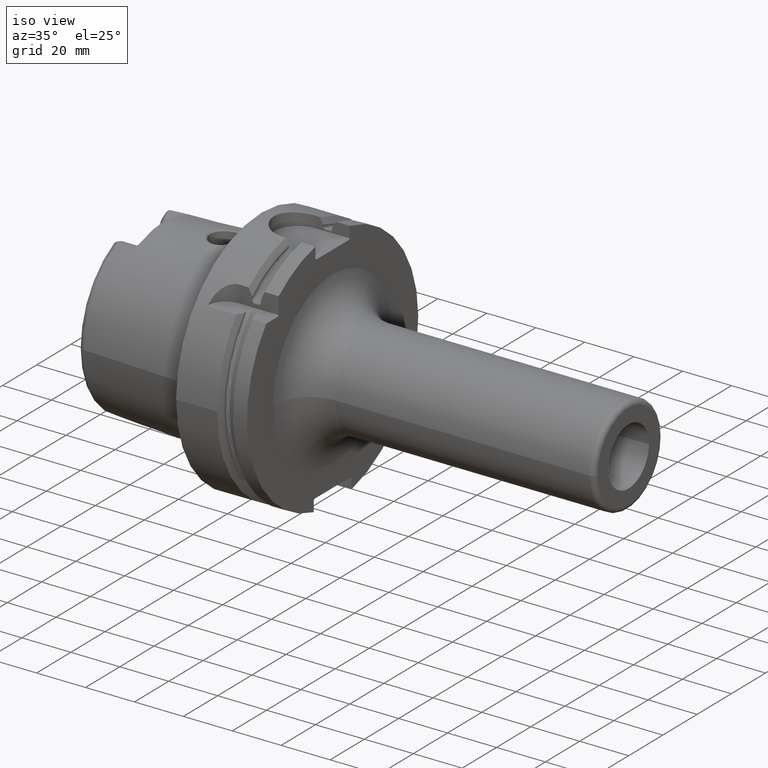
[diagram: clean part render]
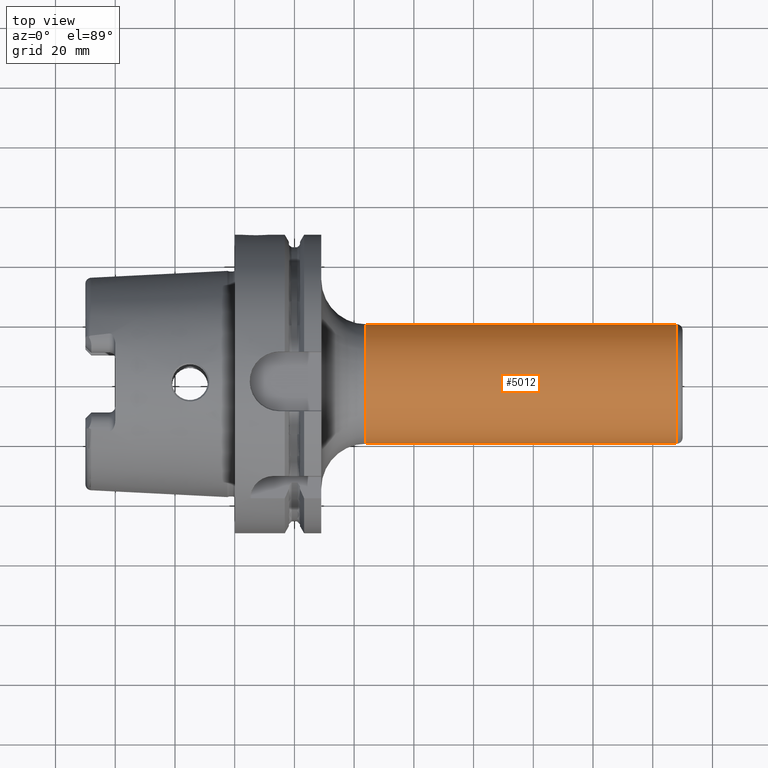
[diagram: tour spotlight — one face highlighted and labeled with its STEP entity id]
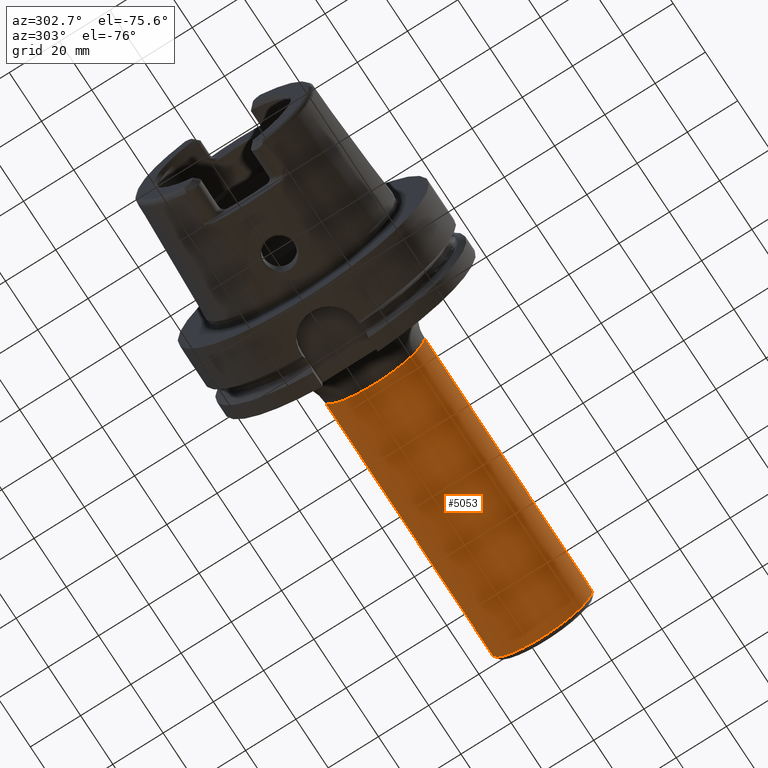
[diagram: tour spotlight — one face highlighted and labeled with its STEP entity id]
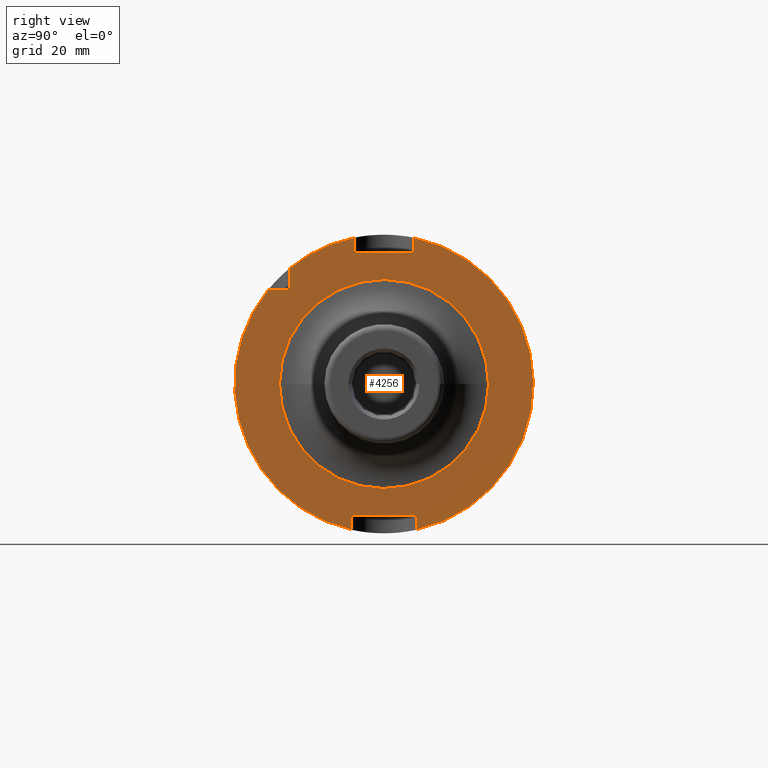
[diagram: tour spotlight — one face highlighted and labeled with its STEP entity id]
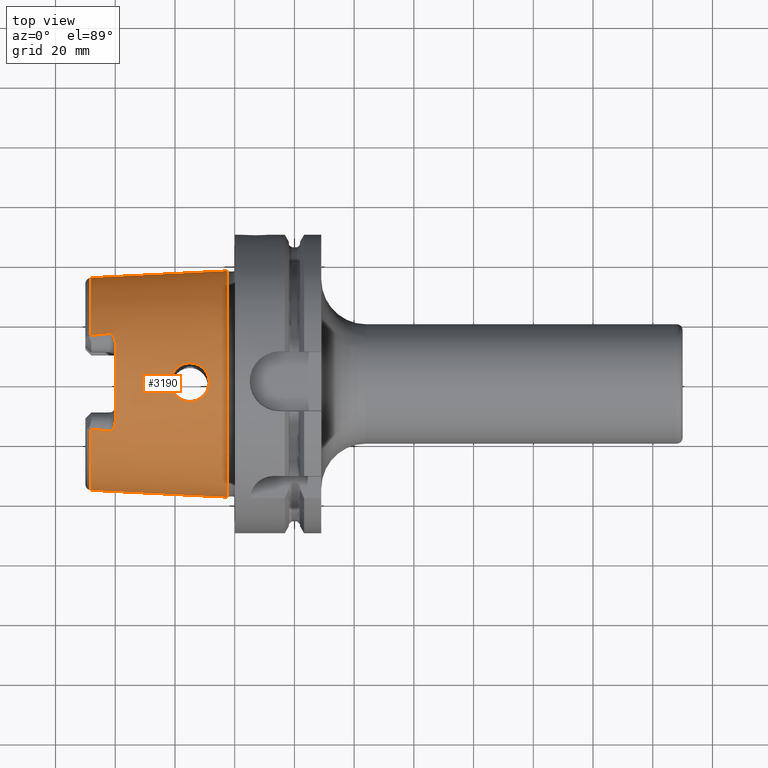
[diagram: tour spotlight — one face highlighted and labeled with its STEP entity id]
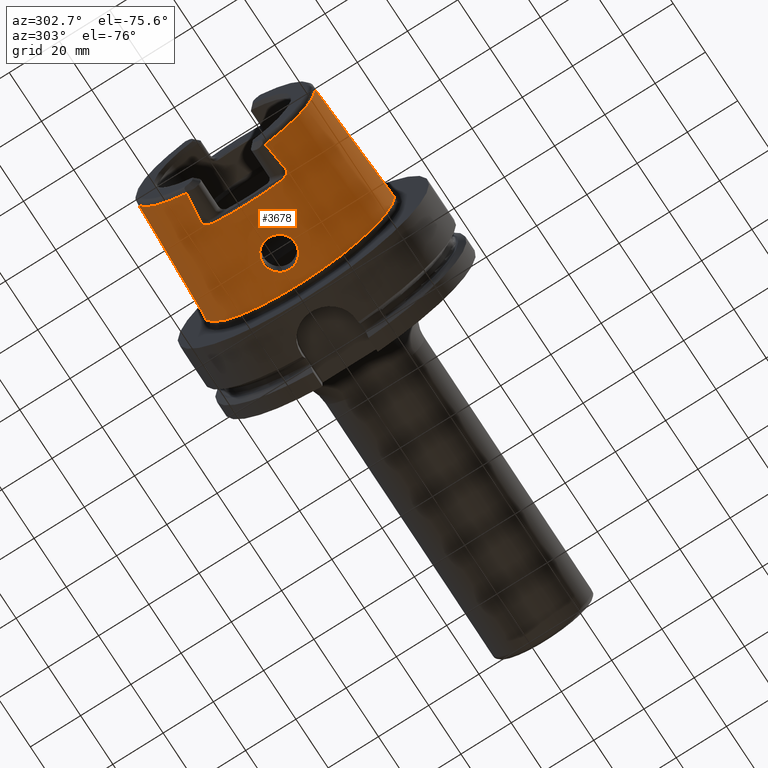
[diagram: tour spotlight — one face highlighted and labeled with its STEP entity id]
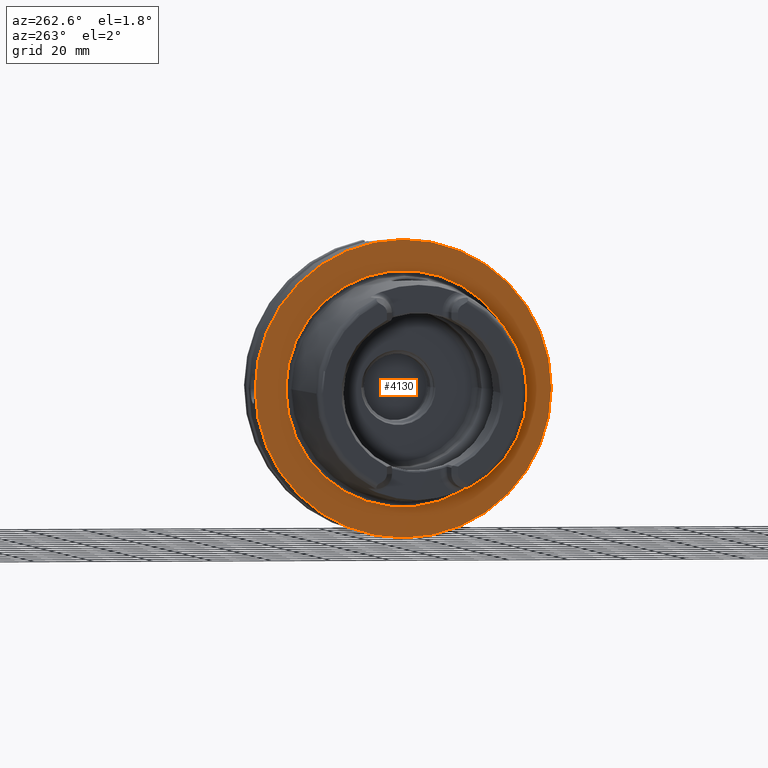
[diagram: tour spotlight — one face highlighted and labeled with its STEP entity id]
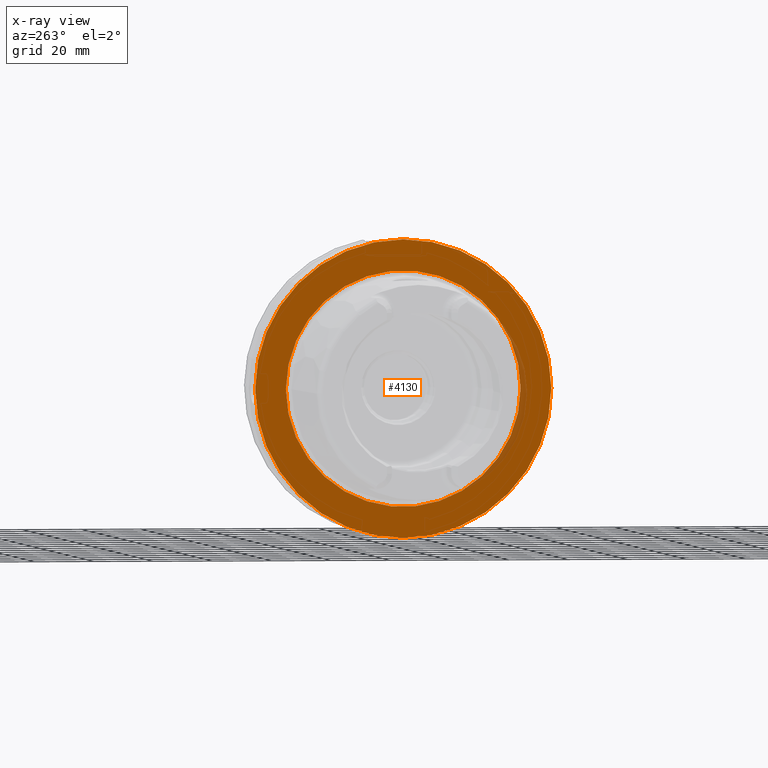
[diagram: x-ray of the same camera — body ghosted, this tour face saturated]
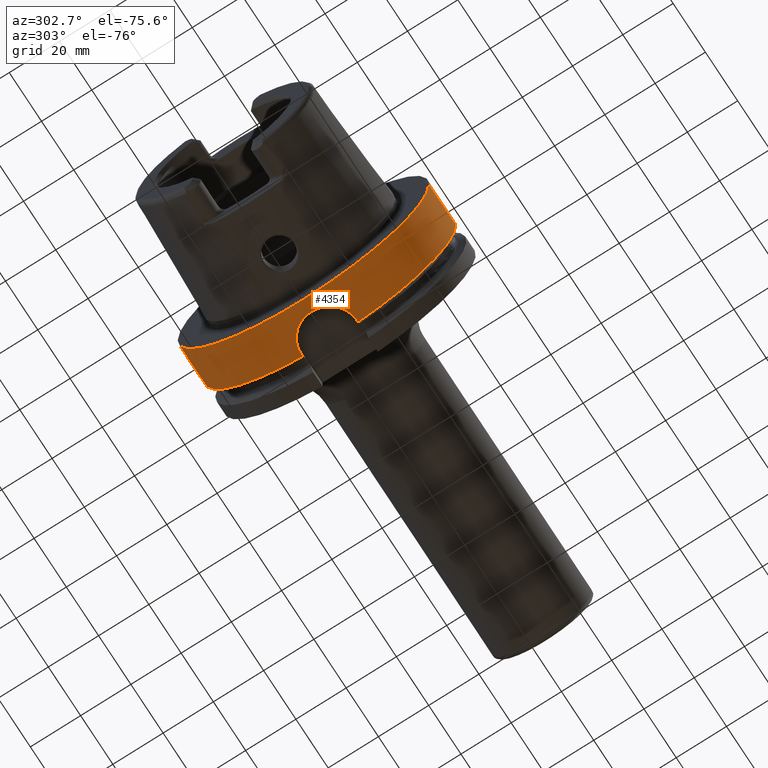
[diagram: tour spotlight — one face highlighted and labeled with its STEP entity id]
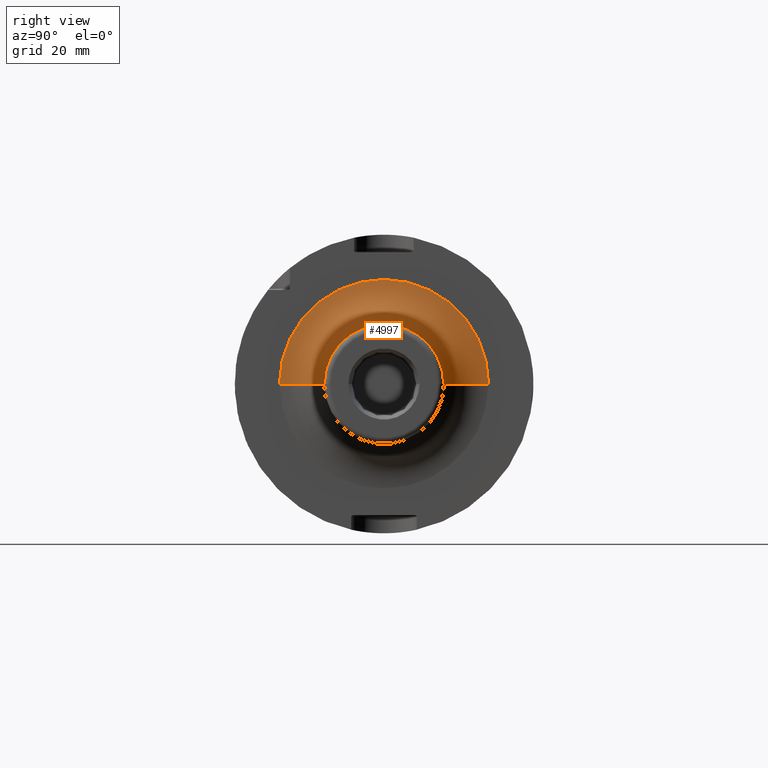
[diagram: tour spotlight — one face highlighted and labeled with its STEP entity id]
A machine part: a face-by-face anatomy tour. The part has 174 B-rep faces; the first image is the clean iso view, then the 8 largest visible faces are spotlighted one at a time (largest first), each with its STEP entity span.

Face 1 — top view, entity #5012. In plain terms, the highlighted cylindrical surface (partial cylindrical patch) has radius 20 mm, axis along (1, 0, 0).
Definition (entity closure, byte-faithful):
#1820=CARTESIAN_POINT('',(1.48E2,0.E0,0.E0));
#1821=DIRECTION('',(-1.E0,0.E0,0.E0));
#1822=DIRECTION('',(0.E0,-1.E0,0.E0));
#1823=AXIS2_PLACEMENT_3D('',#1820,#1821,#1822);
#1825=CARTESIAN_POINT('',(4.4E1,0.E0,0.E0));
#1826=DIRECTION('',(1.E0,0.E0,0.E0));
#1827=DIRECTION('',(0.E0,1.E0,0.E0));
#1828=AXIS2_PLACEMENT_3D('',#1825,#1826,#1827);
#1845=DIRECTION('',(-1.E0,0.E0,0.E0));
#1846=VECTOR('',#1845,1.04E2);
#1847=CARTESIAN_POINT('',(1.48E2,2.E1,-9.573251772015E-14));
#1848=LINE('',#1847,#1846);
#1854=DIRECTION('',(-1.E0,0.E0,0.E0));
#1855=VECTOR('',#1854,1.04E2);
#1856=CARTESIAN_POINT('',(1.48E2,-2.E1,9.511441768473E-14));
#1857=LINE('',#1856,#1855);
#3129=CARTESIAN_POINT('',(4.4E1,-2.E1,0.E0));
#3130=CARTESIAN_POINT('',(4.4E1,2.E1,0.E0));
#3131=VERTEX_POINT('',#3129);
#3132=VERTEX_POINT('',#3130);
#3133=CARTESIAN_POINT('',(1.48E2,2.E1,0.E0));
#3134=CARTESIAN_POINT('',(1.48E2,-2.E1,0.E0));
#3135=VERTEX_POINT('',#3133);
#3136=VERTEX_POINT('',#3134);
#4998=CARTESIAN_POINT('',(2.295E1,0.E0,0.E0));
#4999=DIRECTION('',(1.E0,0.E0,0.E0));
#5000=DIRECTION('',(0.E0,-1.E0,0.E0));
#5001=AXIS2_PLACEMENT_3D('',#4998,#4999,#5000);
#5002=CYLINDRICAL_SURFACE('',#5001,2.E1);
#5004=ORIENTED_EDGE('',*,*,#5003,.F.);
#5006=ORIENTED_EDGE('',*,*,#5005,.T.);
#5007=ORIENTED_EDGE('',*,*,#4992,.F.);
#5009=ORIENTED_EDGE('',*,*,#5008,.F.);
#5010=EDGE_LOOP('',(#5004,#5006,#5007,#5009));
#5011=FACE_OUTER_BOUND('',#5010,.F.);
#5012=ADVANCED_FACE('',(#5011),#5002,.T.);
#1824=CIRCLE('',#1823,2.E1);
#1829=CIRCLE('',#1828,2.E1);
#4992=EDGE_CURVE('',#3132,#3131,#1829,.T.);
#5003=EDGE_CURVE('',#3136,#3135,#1824,.T.);
#5005=EDGE_CURVE('',#3136,#3131,#1857,.T.);
#5008=EDGE_CURVE('',#3135,#3132,#1848,.T.);

Face 2 — auxiliary view, entity #5053. In plain terms, the highlighted cylindrical surface (partial cylindrical patch) has radius 20 mm, axis along (1, 0, 0).
Definition (entity closure, byte-faithful):
#1840=CARTESIAN_POINT('',(1.48E2,0.E0,0.E0));
#1841=DIRECTION('',(-1.E0,0.E0,0.E0));
#1842=DIRECTION('',(0.E0,1.E0,0.E0));
#1843=AXIS2_PLACEMENT_3D('',#1840,#1841,#1842);
#1845=DIRECTION('',(-1.E0,0.E0,0.E0));
#1846=VECTOR('',#1845,1.04E2);
#1847=CARTESIAN_POINT('',(1.48E2,2.E1,-9.573251772015E-14));
#1848=LINE('',#1847,#1846);
#1849=CARTESIAN_POINT('',(4.4E1,0.E0,0.E0));
#1850=DIRECTION('',(1.E0,0.E0,0.E0));
#1851=DIRECTION('',(0.E0,-1.E0,0.E0));
#1852=AXIS2_PLACEMENT_3D('',#1849,#1850,#1851);
#1854=DIRECTION('',(-1.E0,0.E0,0.E0));
#1855=VECTOR('',#1854,1.04E2);
#1856=CARTESIAN_POINT('',(1.48E2,-2.E1,9.511441768473E-14));
#1857=LINE('',#1856,#1855);
#3129=CARTESIAN_POINT('',(4.4E1,-2.E1,0.E0));
#3130=CARTESIAN_POINT('',(4.4E1,2.E1,0.E0));
#3131=VERTEX_POINT('',#3129);
#3132=VERTEX_POINT('',#3130);
#3133=CARTESIAN_POINT('',(1.48E2,2.E1,0.E0));
#3134=CARTESIAN_POINT('',(1.48E2,-2.E1,0.E0));
#3135=VERTEX_POINT('',#3133);
#3136=VERTEX_POINT('',#3134);
#5042=CARTESIAN_POINT('',(2.295E1,0.E0,0.E0));
#5043=DIRECTION('',(1.E0,0.E0,0.E0));
#5044=DIRECTION('',(0.E0,-1.E0,0.E0));
#5045=AXIS2_PLACEMENT_3D('',#5042,#5043,#5044);
#5046=CYLINDRICAL_SURFACE('',#5045,2.E1);
#5047=ORIENTED_EDGE('',*,*,#5033,.F.);
#5048=ORIENTED_EDGE('',*,*,#5008,.T.);
#5049=ORIENTED_EDGE('',*,*,#4978,.F.);
#5050=ORIENTED_EDGE('',*,*,#5005,.F.);
#5051=EDGE_LOOP('',(#5047,#5048,#5049,#5050));
#5052=FACE_OUTER_BOUND('',#5051,.F.);
#5053=ADVANCED_FACE('',(#5052),#5046,.T.);
#1844=CIRCLE('',#1843,2.E1);
#1853=CIRCLE('',#1852,2.E1);
#4978=EDGE_CURVE('',#3131,#3132,#1853,.T.);
#5005=EDGE_CURVE('',#3136,#3131,#1857,.T.);
#5008=EDGE_CURVE('',#3135,#3132,#1848,.T.);
#5033=EDGE_CURVE('',#3135,#3136,#1844,.T.);

Face 3 — right view, entity #4256. In plain terms, the highlighted planar face has unit normal (1, 0, 0).
Definition (entity closure, byte-faithful):
#1051=DIRECTION('',(0.E0,-7.071067811865E-1,-7.071067811865E-1));
#1052=VECTOR('',#1051,5.656854249492E-1);
#1053=CARTESIAN_POINT('',(2.9E1,-3.15E1,3.19E1));
#1054=LINE('',#1053,#1052);
#1059=DIRECTION('',(0.E0,1.E0,0.E0));
#1060=VECTOR('',#1059,6.929756630708E0);
#1061=CARTESIAN_POINT('',(2.9E1,-3.882975663071E1,3.15E1));
#1062=LINE('',#1061,#1060);
#1063=DIRECTION('',(0.E0,0.E0,-1.E0));
#1064=VECTOR('',#1063,6.929756630708E0);
#1065=CARTESIAN_POINT('',(2.9E1,-3.15E1,3.882975663071E1));
#1066=LINE('',#1065,#1064);
#1067=DIRECTION('',(0.E0,0.E0,-1.E0));
#1068=VECTOR('',#1067,4.589794855664E0);
#1069=CARTESIAN_POINT('',(2.9E1,-1.E1,4.898979485566E1));
#1070=LINE('',#1069,#1068);
#1071=DIRECTION('',(0.E0,1.E0,0.E0));
#1072=VECTOR('',#1071,1.92E1);
#1073=CARTESIAN_POINT('',(2.9E1,-9.6E0,4.4E1));
#1074=LINE('',#1073,#1072);
#1075=DIRECTION('',(0.E0,0.E0,-1.E0));
#1076=VECTOR('',#1075,4.589794855664E0);
#1077=CARTESIAN_POINT('',(2.9E1,1.E1,4.898979485566E1));
#1078=LINE('',#1077,#1076);
#1079=DIRECTION('',(0.E0,0.E0,1.E0));
#1080=VECTOR('',#1079,4.374993593029E0);
#1081=CARTESIAN_POINT('',(2.9E1,1.1E1,-4.877499359303E1));
#1082=LINE('',#1081,#1080);
#1083=DIRECTION('',(0.E0,-1.E0,0.E0));
#1084=VECTOR('',#1083,2.12E1);
#1085=CARTESIAN_POINT('',(2.9E1,1.06E1,-4.4E1));
#1086=LINE('',#1085,#1084);
#1087=DIRECTION('',(0.E0,0.E0,1.E0));
#1088=VECTOR('',#1087,4.374993593029E0);
#1089=CARTESIAN_POINT('',(2.9E1,-1.1E1,-4.877499359303E1));
#1090=LINE('',#1089,#1088);
#1091=CARTESIAN_POINT('',(2.9E1,0.E0,0.E0));
#1092=DIRECTION('',(1.E0,0.E0,0.E0));
#1093=DIRECTION('',(0.E0,-1.E0,0.E0));
#1094=AXIS2_PLACEMENT_3D('',#1091,#1092,#1093);
#1096=CARTESIAN_POINT('',(2.9E1,0.E0,0.E0));
#1097=DIRECTION('',(1.E0,0.E0,0.E0));
#1098=DIRECTION('',(0.E0,1.E0,0.E0));
#1099=AXIS2_PLACEMENT_3D('',#1096,#1097,#1098);
#1114=CARTESIAN_POINT('',(2.9E1,0.E0,0.E0));
#1115=DIRECTION('',(1.E0,0.E0,0.E0));
#1116=DIRECTION('',(0.E0,2.2E-1,-9.754998718606E-1));
#1117=AXIS2_PLACEMENT_3D('',#1114,#1115,#1116);
#1127=CARTESIAN_POINT('',(2.9E1,0.E0,0.E0));
#1128=DIRECTION('',(1.E0,0.E0,0.E0));
#1129=DIRECTION('',(0.E0,-7.765951326142E-1,6.3E-1));
#1130=AXIS2_PLACEMENT_3D('',#1127,#1128,#1129);
#1144=CARTESIAN_POINT('',(2.9E1,0.E0,0.E0));
#1145=DIRECTION('',(1.E0,0.E0,0.E0));
#1146=DIRECTION('',(0.E0,-2.E-1,9.797958971133E-1));
#1147=AXIS2_PLACEMENT_3D('',#1144,#1145,#1146);
#1251=DIRECTION('',(0.E0,7.071067811866E-1,-7.071067811865E-1));
#1252=VECTOR('',#1251,5.656854249492E-1);
#1253=CARTESIAN_POINT('',(2.9E1,1.06E1,-4.4E1));
#1254=LINE('',#1253,#1252);
#1259=DIRECTION('',(0.E0,7.071067811866E-1,7.071067811865E-1));
#1260=VECTOR('',#1259,5.656854249492E-1);
#1261=CARTESIAN_POINT('',(2.9E1,-1.1E1,-4.44E1));
#1262=LINE('',#1261,#1260);
#1748=DIRECTION('',(0.E0,-7.071067811866E-1,-7.071067811865E-1));
#1749=VECTOR('',#1748,5.656854249492E-1);
#1750=CARTESIAN_POINT('',(2.9E1,1.E1,4.44E1));
#1751=LINE('',#1750,#1749);
#1756=DIRECTION('',(0.E0,-7.071067811866E-1,7.071067811865E-1));
#1757=VECTOR('',#1756,5.656854249492E-1);
#1758=CARTESIAN_POINT('',(2.9E1,-9.6E0,4.4E1));
#1759=LINE('',#1758,#1757);
#2946=CARTESIAN_POINT('',(2.9E1,-9.6E0,4.4E1));
#2947=CARTESIAN_POINT('',(2.9E1,-1.E1,4.44E1));
#2948=VERTEX_POINT('',#2946);
#2949=VERTEX_POINT('',#2947);
#2950=CARTESIAN_POINT('',(2.9E1,1.E1,4.44E1));
#2951=CARTESIAN_POINT('',(2.9E1,9.6E0,4.4E1));
#2952=VERTEX_POINT('',#2950);
#2953=VERTEX_POINT('',#2951);
#2954=CARTESIAN_POINT('',(2.9E1,1.06E1,-4.4E1));
#2955=CARTESIAN_POINT('',(2.9E1,1.1E1,-4.44E1));
#2956=VERTEX_POINT('',#2954);
#2957=VERTEX_POINT('',#2955);
#2958=CARTESIAN_POINT('',(2.9E1,-1.1E1,-4.44E1));
#2959=CARTESIAN_POINT('',(2.9E1,-1.06E1,-4.4E1));
#2960=VERTEX_POINT('',#2958);
#2961=VERTEX_POINT('',#2959);
#2999=CARTESIAN_POINT('',(2.9E1,1.1E1,-4.877499359303E1));
#3001=VERTEX_POINT('',#2999);
#3007=CARTESIAN_POINT('',(2.9E1,-1.1E1,-4.877499359303E1));
#3009=VERTEX_POINT('',#3007);
#3042=CARTESIAN_POINT('',(2.9E1,-1.E1,4.898979485566E1));
#3043=VERTEX_POINT('',#3042);
#3044=CARTESIAN_POINT('',(2.9E1,1.E1,4.898979485566E1));
#3045=VERTEX_POINT('',#3044);
#3048=CARTESIAN_POINT('',(2.9E1,-3.15E1,3.19E1));
#3049=CARTESIAN_POINT('',(2.9E1,-3.19E1,3.15E1));
#3050=VERTEX_POINT('',#3048);
#3051=VERTEX_POINT('',#3049);
#3057=CARTESIAN_POINT('',(2.9E1,-3.882975663071E1,3.15E1));
#3059=VERTEX_POINT('',#3057);
#3061=CARTESIAN_POINT('',(2.9E1,-3.15E1,3.882975663071E1));
#3063=VERTEX_POINT('',#3061);
#3125=CARTESIAN_POINT('',(2.9E1,-3.5E1,0.E0));
#3126=CARTESIAN_POINT('',(2.9E1,3.5E1,0.E0));
#3127=VERTEX_POINT('',#3125);
#3128=VERTEX_POINT('',#3126);
#4212=CARTESIAN_POINT('',(2.9E1,0.E0,0.E0));
#4213=DIRECTION('',(1.E0,0.E0,0.E0));
#4214=DIRECTION('',(0.E0,-1.E0,0.E0));
#4215=AXIS2_PLACEMENT_3D('',#4212,#4213,#4214);
#4216=PLANE('',#4215);
#4218=ORIENTED_EDGE('',*,*,#4217,.T.);
#4219=ORIENTED_EDGE('',*,*,#4202,.F.);
#4221=ORIENTED_EDGE('',*,*,#4220,.F.);
#4223=ORIENTED_EDGE('',*,*,#4222,.F.);
#4225=ORIENTED_EDGE('',*,*,#4224,.T.);
#4227=ORIENTED_EDGE('',*,*,#4226,.F.);
#4229=ORIENTED_EDGE('',*,*,#4228,.T.);
#4231=ORIENTED_EDGE('',*,*,#4230,.F.);
#4233=ORIENTED_EDGE('',*,*,#4232,.F.);
#4235=ORIENTED_EDGE('',*,*,#4234,.F.);
#4237=ORIENTED_EDGE('',*,*,#4236,.T.);
#4239=ORIENTED_EDGE('',*,*,#4238,.F.);
#4241=ORIENTED_EDGE('',*,*,#4240,.T.);
#4243=ORIENTED_EDGE('',*,*,#4242,.F.);
#4245=ORIENTED_EDGE('',*,*,#4244,.F.);
#4247=ORIENTED_EDGE('',*,*,#4246,.F.);
#4248=EDGE_LOOP('',(#4218,#4219,#4221,#4223,#4225,#4227,#4229,#4231,#4233,#4235,
#4237,#4239,#4241,#4243,#4245,#4247));
#4249=FACE_OUTER_BOUND('',#4248,.F.);
#4251=ORIENTED_EDGE('',*,*,#4250,.T.);
#4253=ORIENTED_EDGE('',*,*,#4252,.T.);
#4254=EDGE_LOOP('',(#4251,#4253));
#4255=FACE_BOUND('',#4254,.F.);
#4256=ADVANCED_FACE('',(#4249,#4255),#4216,.T.);
#1095=CIRCLE('',#1094,3.5E1);
#1100=CIRCLE('',#1099,3.5E1);
#1118=CIRCLE('',#1117,5.E1);
#1131=CIRCLE('',#1130,5.E1);
#1148=CIRCLE('',#1147,5.E1);
#4202=EDGE_CURVE('',#3050,#3051,#1054,.T.);
#4217=EDGE_CURVE('',#3059,#3051,#1062,.T.);
#4220=EDGE_CURVE('',#3063,#3050,#1066,.T.);
#4222=EDGE_CURVE('',#3043,#3063,#1148,.T.);
#4224=EDGE_CURVE('',#3043,#2949,#1070,.T.);
#4226=EDGE_CURVE('',#2948,#2949,#1759,.T.);
#4228=EDGE_CURVE('',#2948,#2953,#1074,.T.);
#4230=EDGE_CURVE('',#2952,#2953,#1751,.T.);
#4232=EDGE_CURVE('',#3045,#2952,#1078,.T.);
#4234=EDGE_CURVE('',#3001,#3045,#1118,.T.);
#4236=EDGE_CURVE('',#3001,#2957,#1082,.T.);
#4238=EDGE_CURVE('',#2956,#2957,#1254,.T.);
#4240=EDGE_CURVE('',#2956,#2961,#1086,.T.);
#4242=EDGE_CURVE('',#2960,#2961,#1262,.T.);
#4244=EDGE_CURVE('',#3009,#2960,#1090,.T.);
#4246=EDGE_CURVE('',#3059,#3009,#1131,.T.);
#4250=EDGE_CURVE('',#3127,#3128,#1095,.T.);
#4252=EDGE_CURVE('',#3128,#3127,#1100,.T.);

Face 4 — top view, entity #3190. In plain terms, the highlighted conical surface has half-angle 2.868 deg.
Definition (entity closure, byte-faithful):
#2=CARTESIAN_POINT('',(-4.810007448473E1,-1.567653238626E1,3.196E1));
#3=CARTESIAN_POINT('',(-4.743649089753E1,-1.575202511592E1,3.196E1));
#4=CARTESIAN_POINT('',(-4.609985749196E1,-1.590320831227E1,3.196E1));
#5=CARTESIAN_POINT('',(-4.406668280177E1,-1.613055880919E1,3.196E1));
#6=CARTESIAN_POINT('',(-4.269206894520E1,-1.628254944441E1,3.196E1));
#7=CARTESIAN_POINT('',(-4.2E1,-1.635864758744E1,3.196E1));
#9=CARTESIAN_POINT('',(-4.E1,0.E0,0.E0));
#10=DIRECTION('',(1.E0,0.E0,0.E0));
#11=DIRECTION('',(0.E0,3.574556786365E-1,9.339301032789E-1));
#12=AXIS2_PLACEMENT_3D('',#9,#10,#11);
#14=CARTESIAN_POINT('',(-4.2E1,1.635864758744E1,3.196E1));
#15=CARTESIAN_POINT('',(-4.269204070145E1,1.628255255002E1,3.196E1));
#16=CARTESIAN_POINT('',(-4.406661691692E1,1.613056612298E1,3.196E1));
#17=CARTESIAN_POINT('',(-4.609979244919E1,1.590321563865E1,3.196E1));
#18=CARTESIAN_POINT('',(-4.743646302974E1,1.575202828631E1,3.196E1));
#19=CARTESIAN_POINT('',(-4.810007448473E1,1.567653238626E1,3.196E1));
#21=CARTESIAN_POINT('',(-2.5E0,0.E0,0.E0));
#22=DIRECTION('',(1.E0,0.E0,0.E0));
#23=DIRECTION('',(0.E0,1.E0,0.E0));
#24=AXIS2_PLACEMENT_3D('',#21,#22,#23);
#26=CARTESIAN_POINT('',(-2.149938207697E1,5.552926221647E-11,3.693037254664E1));
#27=CARTESIAN_POINT('',(-2.149947810722E1,2.456946967410E-1,3.693041400584E1));
#28=CARTESIAN_POINT('',(-2.146978943123E1,7.663421073483E-1,3.692663668754E1));
#29=CARTESIAN_POINT('',(-2.132902699242E1,1.552723327933E0,3.690919478302E1));
#30=CARTESIAN_POINT('',(-2.108091480959E1,2.342139536845E0,3.687974365394E1));
#31=CARTESIAN_POINT('',(-2.073440330363E1,3.094103832942E0,3.684140909161E1));
#32=CARTESIAN_POINT('',(-2.029456045373E1,3.796705318232E0,3.679744070735E1));
#33=CARTESIAN_POINT('',(-1.976895967621E1,4.437440706102E0,3.675180792921E1));
#34=CARTESIAN_POINT('',(-1.916766491360E1,5.004833501251E0,3.670884542936E1));
#35=CARTESIAN_POINT('',(-1.850089510031E1,5.490460623479E0,3.667275311991E1));
#36=CARTESIAN_POINT('',(-1.777939225152E1,5.887431777884E0,3.664739565010E1));
#37=CARTESIAN_POINT('',(-1.701424609593E1,6.190220322635E0,3.663607600264E1));
#38=CARTESIAN_POINT('',(-1.621758055837E1,6.394419176819E0,3.664131821143E1));
#39=CARTESIAN_POINT('',(-1.539955429301E1,6.497326105441E0,3.666474029556E1));
#40=CARTESIAN_POINT('',(-1.457114975166E1,6.496134002949E0,3.670710840669E1));
#41=CARTESIAN_POINT('',(-1.375127425398E1,6.390454994673E0,3.676745544266E1));
#42=CARTESIAN_POINT('',(-1.294983719070E1,6.181706493026E0,3.684404556607E1));
#43=CARTESIAN_POINT('',(-1.217938970715E1,5.872066509057E0,3.693403258601E1));
#44=CARTESIAN_POINT('',(-1.145343003562E1,5.466036101540E0,3.703341626103E1));
#45=CARTESIAN_POINT('',(-1.078465658031E1,4.970022940288E0,3.713742863004E1));
#46=CARTESIAN_POINT('',(-1.018517891880E1,4.392789013038E0,3.724075525816E1));
#47=CARTESIAN_POINT('',(-9.665388344352E0,3.744837411386E0,3.733802077293E1));
#48=CARTESIAN_POINT('',(-9.234092519568E0,3.038687491876E0,3.742410507514E1));
#49=CARTESIAN_POINT('',(-8.897351452215E0,2.287331206380E0,3.749468513875E1));
#50=CARTESIAN_POINT('',(-8.658527750933E0,1.501792221622E0,3.754652778726E1));
#51=CARTESIAN_POINT('',(-8.527369438248E0,7.337668322055E-1,3.757562813366E1));
#52=CARTESIAN_POINT('',(-8.500550849541E0,2.307484502453E-1,3.758164606668E1));
#53=CARTESIAN_POINT('',(-8.500618238409E0,-3.201212427053E-11,
3.758161093072E1));
#55=CARTESIAN_POINT('',(-8.500618238409E0,-3.201212427053E-11,
3.758161093072E1));
#56=CARTESIAN_POINT('',(-8.500529243712E0,-2.424312186462E-1,3.758165761842E1));
#57=CARTESIAN_POINT('',(-8.529377584627E0,-7.570713761110E-1,3.757517365272E1));
#58=CARTESIAN_POINT('',(-8.666699960505E0,-1.535920192154E0,3.754473037167E1));
#59=CARTESIAN_POINT('',(-8.909712492800E0,-2.320075305293E0,3.749204213674E1));
#60=CARTESIAN_POINT('',(-9.250504215006E0,-3.069650750447E0,3.742074072411E1));
#61=CARTESIAN_POINT('',(-9.685687617568E0,-3.773592271729E0,3.733408895737E1));
#62=CARTESIAN_POINT('',(-1.020908185061E1,-4.418816591912E0,3.723645352953E1));
#63=CARTESIAN_POINT('',(-1.081164311031E1,-4.992724782849E0,3.713300191729E1));
#64=CARTESIAN_POINT('',(-1.148289197008E1,-5.484961003997E0,3.702910971345E1));
#65=CARTESIAN_POINT('',(-1.221077052890E1,-5.886958600290E0,3.693005620282E1));
#66=CARTESIAN_POINT('',(-1.298272715167E1,-6.192450910075E0,3.684056019680E1));
#67=CARTESIAN_POINT('',(-1.378543745730E1,-6.397007236175E0,3.676457229973E1));
#68=CARTESIAN_POINT('',(-1.460657276070E1,-6.498354658048E0,3.670491060908E1));
#69=CARTESIAN_POINT('',(-1.543495839616E1,-6.495033034286E0,3.666334714016E1));
#70=CARTESIAN_POINT('',(-1.625254215847E1,-6.387680563827E0,3.664072182306E1));
#71=CARTESIAN_POINT('',(-1.704827269515E1,-6.179075952149E0,3.663623858926E1));
#72=CARTESIAN_POINT('',(-1.781166108930E1,-5.872129661425E0,3.664822647582E1));
#73=CARTESIAN_POINT('',(-1.853088883617E1,-5.471276112331E0,3.667411627299E1));
#74=CARTESIAN_POINT('',(-1.919496044775E1,-4.982042332370E0,3.671058230959E1));
#75=CARTESIAN_POINT('',(-1.979312959260E1,-4.411388967116E0,3.675374151488E1));
#76=CARTESIAN_POINT('',(-2.031520136204E1,-3.767815751250E0,3.679938652908E1));
#77=CARTESIAN_POINT('',(-2.075116173440E1,-3.062888856216E0,3.684318827995E1));
#78=CARTESIAN_POINT('',(-2.109352623852E1,-2.309166702590E0,3.688120055672E1));
#79=CARTESIAN_POINT('',(-2.133733752753E1,-1.518482485311E0,3.691020909579E1));
#80=CARTESIAN_POINT('',(-2.147183542910E1,-7.429704319279E-1,3.692690027450E1));
#81=CARTESIAN_POINT('',(-2.149945558988E1,-2.340112752743E-1,3.693040395664E1));
#82=CARTESIAN_POINT('',(-2.149938207697E1,5.552926221647E-11,3.693037254664E1));
#248=CARTESIAN_POINT('',(-4.044615405310E1,1.501E1,3.270080868281E1));
#249=CARTESIAN_POINT('',(-4.036716971646E1,1.480714421409E1,3.279827559643E1));
#250=CARTESIAN_POINT('',(-4.023151678165E1,1.441318283024E1,3.298193753654E1));
#251=CARTESIAN_POINT('',(-4.009402199227E1,1.386111148947E1,3.322490472400E1));
#252=CARTESIAN_POINT('',(-4.001617021866E1,1.334582492697E1,3.343918234932E1));
#253=CARTESIAN_POINT('',(-4.E1,1.302441475567E1,3.356551938374E1));
#254=CARTESIAN_POINT('',(-4.E1,1.286965552579E1,3.362475247340E1));
#312=CARTESIAN_POINT('',(-4.810007448473E1,0.E0,0.E0));
#313=DIRECTION('',(1.E0,0.E0,0.E0));
#314=DIRECTION('',(0.E0,1.E0,0.E0));
#315=AXIS2_PLACEMENT_3D('',#312,#313,#314);
#387=CARTESIAN_POINT('',(-4.810007448473E1,0.E0,0.E0));
#388=DIRECTION('',(1.E0,0.E0,0.E0));
#389=DIRECTION('',(0.E0,-4.403806547453E-1,8.978111599474E-1));
#390=AXIS2_PLACEMENT_3D('',#387,#388,#389);
#561=DIRECTION('',(-9.987473526255E-1,5.003724236654E-2,0.E0));
#562=VECTOR('',#561,4.565726694029E1);
#563=CARTESIAN_POINT('',(-2.5E0,-3.788225E1,0.E0));
#564=LINE('',#563,#562);
#570=DIRECTION('',(-9.987473526255E-1,-5.003724236654E-2,0.E0));
#571=VECTOR('',#570,4.565726694029E1);
#572=CARTESIAN_POINT('',(-2.5E0,3.788225E1,0.E0));
#573=LINE('',#572,#571);
#2577=CARTESIAN_POINT('',(-4.E1,-1.286965552579E1,3.362475247340E1));
#2578=CARTESIAN_POINT('',(-4.E1,-1.302441541648E1,3.356551913082E1));
#2579=CARTESIAN_POINT('',(-4.001617018251E1,-1.334582535629E1,
3.343918219674E1));
#2580=CARTESIAN_POINT('',(-4.009402242674E1,-1.386111200207E1,
3.322490442026E1));
#2581=CARTESIAN_POINT('',(-4.023151276023E1,-1.441316885171E1,
3.298194383001E1));
#2582=CARTESIAN_POINT('',(-4.036716744567E1,-1.480713838201E1,
3.279827839859E1));
#2583=CARTESIAN_POINT('',(-4.044615405310E1,-1.501E1,3.270080868281E1));
#2659=CARTESIAN_POINT('',(-4.044615405310E1,-1.501E1,3.270080868281E1));
#2660=CARTESIAN_POINT('',(-4.048970886745E1,-1.512186200292E1,
3.264706190833E1));
#2661=CARTESIAN_POINT('',(-4.058203784729E1,-1.533106618308E1,
3.254453864538E1));
#2662=CARTESIAN_POINT('',(-4.073432021554E1,-1.560191666355E1,
3.240695208273E1));
#2663=CARTESIAN_POINT('',(-4.089735125525E1,-1.582886077686E1,
3.228748605874E1));
#2664=CARTESIAN_POINT('',(-4.106769081077E1,-1.601331012900E1,
3.218678608847E1));
#2665=CARTESIAN_POINT('',(-4.125393253486E1,-1.616457753287E1,
3.210056649743E1));
#2666=CARTESIAN_POINT('',(-4.144626840802E1,-1.627335249792E1,
3.203468630644E1));
#2667=CARTESIAN_POINT('',(-4.163743535609E1,-1.633966611997E1,
3.199012198327E1));
#2668=CARTESIAN_POINT('',(-4.181861360320E1,-1.636784997544E1,
3.196549826812E1));
#2669=CARTESIAN_POINT('',(-4.194004005827E1,-1.636524063030E1,3.196E1));
#2670=CARTESIAN_POINT('',(-4.2E1,-1.635864758744E1,3.196E1));
#2680=CARTESIAN_POINT('',(-4.2E1,1.635864758744E1,3.196E1));
#2681=CARTESIAN_POINT('',(-4.193871342572E1,1.636538650345E1,3.196E1));
#2682=CARTESIAN_POINT('',(-4.181450390691E1,1.636814761969E1,3.196557762379E1));
#2683=CARTESIAN_POINT('',(-4.162243507007E1,1.633619695788E1,3.199274042675E1));
#2684=CARTESIAN_POINT('',(-4.143278453244E1,1.626680995517E1,3.203876886227E1));
#2685=CARTESIAN_POINT('',(-4.124494122381E1,1.615802805146E1,3.210436522250E1));
#2686=CARTESIAN_POINT('',(-4.106242535143E1,1.600818739776E1,3.218962850171E1));
#2687=CARTESIAN_POINT('',(-4.089248890939E1,1.582281513116E1,3.229072139863E1));
#2688=CARTESIAN_POINT('',(-4.073124146543E1,1.559684012110E1,3.240956146553E1));
#2689=CARTESIAN_POINT('',(-4.058058611384E1,1.532793070389E1,3.254608698749E1));
#2690=CARTESIAN_POINT('',(-4.048925691866E1,1.512070126105E1,3.264761961452E1));
#2691=CARTESIAN_POINT('',(-4.044615405310E1,1.501E1,3.270080868281E1));
#2713=CARTESIAN_POINT('',(-2.5E0,3.788225E1,0.E0));
#2714=CARTESIAN_POINT('',(-2.5E0,-3.788225E1,0.E0));
#2715=VERTEX_POINT('',#2713);
#2716=VERTEX_POINT('',#2714);
#2717=CARTESIAN_POINT('',(-4.810007448473E1,3.559768626831E1,0.E0));
#2718=VERTEX_POINT('',#2717);
#2719=CARTESIAN_POINT('',(-4.810007448473E1,-3.559768626831E1,0.E0));
#2720=VERTEX_POINT('',#2719);
#2757=CARTESIAN_POINT('',(-4.810007448473E1,1.567653238626E1,3.196E1));
#2758=VERTEX_POINT('',#2757);
#2759=CARTESIAN_POINT('',(-4.810007448473E1,-1.567653238626E1,3.196E1));
#2760=VERTEX_POINT('',#2759);
#2769=CARTESIAN_POINT('',(-4.E1,1.286965552579E1,3.362475247340E1));
#2770=VERTEX_POINT('',#2769);
#2773=CARTESIAN_POINT('',(-4.2E1,1.635864758744E1,3.196E1));
#2774=VERTEX_POINT('',#2773);
#2775=CARTESIAN_POINT('',(-4.E1,-1.286965552579E1,3.362475247340E1));
#2776=VERTEX_POINT('',#2775);
#2779=CARTESIAN_POINT('',(-4.2E1,-1.635864758744E1,3.196E1));
#2780=VERTEX_POINT('',#2779);
#2781=VERTEX_POINT('',#2691);
#2782=VERTEX_POINT('',#2659);
#2922=VERTEX_POINT('',#26);
#2923=VERTEX_POINT('',#53);
#3153=CARTESIAN_POINT('',(-2.530003724237E1,0.E0,0.E0));
#3154=DIRECTION('',(1.E0,0.E0,0.E0));
#3155=DIRECTION('',(0.E0,-1.E0,0.E0));
#3156=AXIS2_PLACEMENT_3D('',#3153,#3154,#3155);
#3157=CONICAL_SURFACE('',#3156,3.673996813416E1,2.868120487315E0);
#3159=ORIENTED_EDGE('',*,*,#3158,.T.);
#3161=ORIENTED_EDGE('',*,*,#3160,.F.);
#3163=ORIENTED_EDGE('',*,*,#3162,.F.);
#3165=ORIENTED_EDGE('',*,*,#3164,.F.);
#3167=ORIENTED_EDGE('',*,*,#3166,.F.);
#3169=ORIENTED_EDGE('',*,*,#3168,.F.);
#3171=ORIENTED_EDGE('',*,*,#3170,.T.);
#3173=ORIENTED_EDGE('',*,*,#3172,.F.);
#3175=ORIENTED_EDGE('',*,*,#3174,.F.);
#3177=ORIENTED_EDGE('',*,*,#3176,.T.);
#3179=ORIENTED_EDGE('',*,*,#3178,.T.);
#3181=ORIENTED_EDGE('',*,*,#3180,.F.);
#3182=EDGE_LOOP('',(#3159,#3161,#3163,#3165,#3167,#3169,#3171,#3173,#3175,#3177,
#3179,#3181));
#3183=FACE_OUTER_BOUND('',#3182,.F.);
#3185=ORIENTED_EDGE('',*,*,#3184,.F.);
#3187=ORIENTED_EDGE('',*,*,#3186,.F.);
#3188=EDGE_LOOP('',(#3185,#3187));
#3189=FACE_BOUND('',#3188,.F.);
#3190=ADVANCED_FACE('',(#3183,#3189),#3157,.T.);
#8=B_SPLINE_CURVE_WITH_KNOTS('',3,(#2,#3,#4,#5,#6,#7),.UNSPECIFIED.,.F.,.F.,(4,
1,1,4),(0.E0,3.333333333333E-1,6.666666666667E-1,1.E0),.UNSPECIFIED.);
#13=CIRCLE('',#12,3.60035E1);
#20=B_SPLINE_CURVE_WITH_KNOTS('',3,(#14,#15,#16,#17,#18,#19),.UNSPECIFIED.,.F.,
.F.,(4,1,1,4),(0.E0,3.333333333333E-1,6.666666666667E-1,1.E0),.UNSPECIFIED.);
#25=CIRCLE('',#24,3.788225E1);
#54=B_SPLINE_CURVE_WITH_KNOTS('',3,(#26,#27,#28,#29,#30,#31,#32,#33,#34,#35,#36,
#37,#38,#39,#40,#41,#42,#43,#44,#45,#46,#47,#48,#49,#50,#51,#52,#53),
.UNSPECIFIED.,.F.,.F.,(4,1,1,1,1,1,1,1,1,1,1,1,1,1,1,1,1,1,1,1,1,1,1,1,1,4),(
0.E0,3.626792904996E-2,7.667308714875E-2,1.170782452475E-1,1.574834033463E-1,
1.978885614451E-1,2.382937195439E-1,2.786988776427E-1,3.191040357415E-1,
3.595091938403E-1,3.999143519391E-1,4.403195100379E-1,4.807246681367E-1,
5.211298262355E-1,5.615349843343E-1,6.019401424331E-1,6.423453005319E-1,
6.827504586307E-1,7.231556167295E-1,7.635607748283E-1,8.039659329271E-1,
8.443710910259E-1,8.847762491247E-1,9.251814072235E-1,9.655865653223E-1,1.E0),
.UNSPECIFIED.);
#83=B_SPLINE_CURVE_WITH_KNOTS('',3,(#55,#56,#57,#58,#59,#60,#61,#62,#63,#64,#65,
#66,#67,#68,#69,#70,#71,#72,#73,#74,#75,#76,#77,#78,#79,#80,#81,#82),
.UNSPECIFIED.,.F.,.F.,(4,1,1,1,1,1,1,1,1,1,1,1,1,1,1,1,1,1,1,1,1,1,1,1,1,4),(
0.E0,3.618329534544E-2,7.658712835106E-2,1.169909613567E-1,1.573947943623E-1,
1.977986273679E-1,2.382024603735E-1,2.786062933791E-1,3.190101263848E-1,
3.594139593904E-1,3.998177923960E-1,4.402216254016E-1,4.806254584072E-1,
5.210292914128E-1,5.614331244184E-1,6.018369574241E-1,6.422407904297E-1,
6.826446234353E-1,7.230484564409E-1,7.634522894465E-1,8.038561224521E-1,
8.442599554578E-1,8.846637884634E-1,9.250676214690E-1,9.654714544746E-1,1.E0),
.UNSPECIFIED.);
#255=B_SPLINE_CURVE_WITH_KNOTS('',3,(#248,#249,#250,#251,#252,#253,#254),
.UNSPECIFIED.,.F.,.F.,(4,1,1,1,4),(0.E0,2.5E-1,5.E-1,7.5E-1,1.E0),
.UNSPECIFIED.);
#316=CIRCLE('',#315,3.559768626831E1);
#391=CIRCLE('',#390,3.559768626831E1);
#2584=B_SPLINE_CURVE_WITH_KNOTS('',3,(#2577,#2578,#2579,#2580,#2581,#2582,
#2583),.UNSPECIFIED.,.F.,.F.,(4,1,1,1,4),(0.E0,2.5E-1,5.E-1,7.5E-1,1.E0),
.UNSPECIFIED.);
#2671=B_SPLINE_CURVE_WITH_KNOTS('',3,(#2659,#2660,#2661,#2662,#2663,#2664,#2665,
#2666,#2667,#2668,#2669,#2670),.UNSPECIFIED.,.F.,.F.,(4,1,1,1,1,1,1,1,1,4),
(0.E0,1.111111111111E-1,2.222222222222E-1,3.333333333333E-1,4.444444444444E-1,
5.555555555556E-1,6.666666666667E-1,7.777777777778E-1,8.888888888889E-1,1.E0),
.UNSPECIFIED.);
#2692=B_SPLINE_CURVE_WITH_KNOTS('',3,(#2680,#2681,#2682,#2683,#2684,#2685,#2686,
#2687,#2688,#2689,#2690,#2691),.UNSPECIFIED.,.F.,.F.,(4,1,1,1,1,1,1,1,1,4),
(0.E0,1.111111111111E-1,2.222222222222E-1,3.333333333333E-1,4.444444444444E-1,
5.555555555556E-1,6.666666666667E-1,7.777777777778E-1,8.888888888889E-1,1.E0),
.UNSPECIFIED.);
#3158=EDGE_CURVE('',#2760,#2780,#8,.T.);
#3160=EDGE_CURVE('',#2782,#2780,#2671,.T.);
#3162=EDGE_CURVE('',#2776,#2782,#2584,.T.);
#3164=EDGE_CURVE('',#2770,#2776,#13,.T.);
#3166=EDGE_CURVE('',#2781,#2770,#255,.T.);
#3168=EDGE_CURVE('',#2774,#2781,#2692,.T.);
#3170=EDGE_CURVE('',#2774,#2758,#20,.T.);
#3172=EDGE_CURVE('',#2718,#2758,#316,.T.);
#3174=EDGE_CURVE('',#2715,#2718,#573,.T.);
#3176=EDGE_CURVE('',#2715,#2716,#25,.T.);
#3178=EDGE_CURVE('',#2716,#2720,#564,.T.);
#3180=EDGE_CURVE('',#2760,#2720,#391,.T.);
#3184=EDGE_CURVE('',#2922,#2923,#54,.T.);
#3186=EDGE_CURVE('',#2923,#2922,#83,.T.);

Face 5 — auxiliary view, entity #3678. In plain terms, the highlighted conical surface has half-angle 2.868 deg.
Definition (entity closure, byte-faithful):
#307=CARTESIAN_POINT('',(-4.810007448473E1,0.E0,0.E0));
#308=DIRECTION('',(-1.E0,0.E0,0.E0));
#309=DIRECTION('',(0.E0,1.E0,0.E0));
#310=AXIS2_PLACEMENT_3D('',#307,#308,#309);
#392=CARTESIAN_POINT('',(-4.810007448473E1,0.E0,0.E0));
#393=DIRECTION('',(-1.E0,0.E0,0.E0));
#394=DIRECTION('',(0.E0,-4.403806547453E-1,-8.978111599474E-1));
#395=AXIS2_PLACEMENT_3D('',#392,#393,#394);
#542=CARTESIAN_POINT('',(-4.810007448473E1,1.567653238626E1,-3.196E1));
#543=CARTESIAN_POINT('',(-4.691253354608E1,1.581163323682E1,-3.196E1));
#544=CARTESIAN_POINT('',(-4.450693295241E1,1.608249060017E1,-3.196E1));
#545=CARTESIAN_POINT('',(-4.080822205394E1,1.649061651786E1,-3.196E1));
#546=CARTESIAN_POINT('',(-3.827971844003E1,1.676420418060E1,-3.196E1));
#547=CARTESIAN_POINT('',(-3.7E1,1.690135066910E1,-3.196E1));
#549=CARTESIAN_POINT('',(-3.5E1,0.E0,0.E0));
#550=DIRECTION('',(1.E0,0.E0,0.E0));
#551=DIRECTION('',(0.E0,-3.659355944317E-1,-9.306401779033E-1));
#552=AXIS2_PLACEMENT_3D('',#549,#550,#551);
#554=CARTESIAN_POINT('',(-3.7E1,-1.690135066910E1,-3.196E1));
#555=CARTESIAN_POINT('',(-3.827957528302E1,-1.676421952263E1,-3.196E1));
#556=CARTESIAN_POINT('',(-4.080788819039E1,-1.649065289085E1,-3.196E1));
#557=CARTESIAN_POINT('',(-4.450660828452E1,-1.608252688744E1,-3.196E1));
#558=CARTESIAN_POINT('',(-4.691239447940E1,-1.581164905777E1,-3.196E1));
#559=CARTESIAN_POINT('',(-4.810007448473E1,-1.567653238626E1,-3.196E1));
#561=DIRECTION('',(-9.987473526255E-1,5.003724236654E-2,0.E0));
#562=VECTOR('',#561,4.565726694029E1);
#563=CARTESIAN_POINT('',(-2.5E0,-3.788225E1,0.E0));
#564=LINE('',#563,#562);
#565=CARTESIAN_POINT('',(-2.5E0,0.E0,0.E0));
#566=DIRECTION('',(1.E0,0.E0,0.E0));
#567=DIRECTION('',(0.E0,-1.E0,0.E0));
#568=AXIS2_PLACEMENT_3D('',#565,#566,#567);
#570=DIRECTION('',(-9.987473526255E-1,-5.003724236654E-2,0.E0));
#571=VECTOR('',#570,4.565726694029E1);
#572=CARTESIAN_POINT('',(-2.5E0,3.788225E1,0.E0));
#573=LINE('',#572,#571);
#574=CARTESIAN_POINT('',(-8.500618228215E0,-4.475741567310E-11,
-3.758161092103E1));
#575=CARTESIAN_POINT('',(-8.500550626629E0,2.307123186996E-1,
-3.758164609326E1));
#576=CARTESIAN_POINT('',(-8.527361627144E0,7.336655055656E-1,
-3.757562989718E1));
#577=CARTESIAN_POINT('',(-8.658487901890E0,1.501607868725E0,-3.754653658895E1));
#578=CARTESIAN_POINT('',(-8.897257248323E0,2.287068896E0,-3.749470537780E1));
#579=CARTESIAN_POINT('',(-9.233930830616E0,3.038376631295E0,-3.742413833235E1));
#580=CARTESIAN_POINT('',(-9.665180423226E0,3.744542284435E0,-3.733806106411E1));
#581=CARTESIAN_POINT('',(-1.018494007596E1,4.392525906197E0,-3.724079839048E1));
#582=CARTESIAN_POINT('',(-1.078433252086E1,4.969742317677E0,-3.713748237766E1));
#583=CARTESIAN_POINT('',(-1.145295368828E1,5.465719413789E0,-3.703348699097E1));
#584=CARTESIAN_POINT('',(-1.217872434304E1,5.871741506149E0,-3.693411809702E1));
#585=CARTESIAN_POINT('',(-1.294907725396E1,6.181458789403E0,-3.684412609384E1));
#586=CARTESIAN_POINT('',(-1.375077304364E1,6.390383355882E0,-3.676749362246E1));
#587=CARTESIAN_POINT('',(-1.457124723519E1,6.496150992971E0,-3.670710043979E1));
#588=CARTESIAN_POINT('',(-1.539963323060E1,6.497327684605E0,-3.666473599908E1));
#589=CARTESIAN_POINT('',(-1.621811808436E1,6.394337052140E0,-3.664130538745E1));
#590=CARTESIAN_POINT('',(-1.701498565109E1,6.189982543680E0,-3.663607891146E1));
#591=CARTESIAN_POINT('',(-1.778004900083E1,5.887116868581E0,-3.664741303044E1));
#592=CARTESIAN_POINT('',(-1.850137732128E1,5.490146143225E0,-3.667277568766E1));
#593=CARTESIAN_POINT('',(-1.916799834207E1,5.004550368212E0,-3.670886700839E1));
#594=CARTESIAN_POINT('',(-1.976920462201E1,4.437176205297E0,-3.675182754134E1));
#595=CARTESIAN_POINT('',(-2.029477253260E1,3.796411168194E0,-3.679746060413E1));
#596=CARTESIAN_POINT('',(-2.073457092496E1,3.093790391877E0,-3.684142692236E1));
#597=CARTESIAN_POINT('',(-2.108101531841E1,2.341868855664E0,-3.687975533364E1));
#598=CARTESIAN_POINT('',(-2.132907064090E1,1.552529546171E0,-3.690920014808E1));
#599=CARTESIAN_POINT('',(-2.146979802624E1,7.662360037897E-1,
-3.692663777819E1));
#600=CARTESIAN_POINT('',(-2.149947827869E1,2.456572466609E-1,
-3.693041402385E1));
#601=CARTESIAN_POINT('',(-2.149938206728E1,4.252313622681E-11,
-3.693037255683E1));
#603=CARTESIAN_POINT('',(-2.149938206728E1,4.252313622681E-11,
-3.693037255683E1));
#604=CARTESIAN_POINT('',(-2.149945538697E1,-2.340479521171E-1,
-3.693040395485E1));
#605=CARTESIAN_POINT('',(-2.147182734210E1,-7.430736824871E-1,
-3.692689923808E1));
#606=CARTESIAN_POINT('',(-2.133729628437E1,-1.518670363132E0,
-3.691020402111E1));
#607=CARTESIAN_POINT('',(-2.109342961129E1,-2.309431654899E0,
-3.688118929283E1));
#608=CARTESIAN_POINT('',(-2.075099845802E1,-3.063198291705E0,
-3.684317083610E1));
#609=CARTESIAN_POINT('',(-2.031499413642E1,-3.768106404610E0,
-3.679936697460E1));
#610=CARTESIAN_POINT('',(-1.979289029767E1,-4.411650229581E0,
-3.675372219731E1));
#611=CARTESIAN_POINT('',(-1.919463266022E1,-4.982323872691E0,
-3.671056084722E1));
#612=CARTESIAN_POINT('',(-1.853041114464E1,-5.471591578572E0,
-3.667409350441E1));
#613=CARTESIAN_POINT('',(-1.781100487862E1,-5.872448697570E0,
-3.664820853921E1));
#614=CARTESIAN_POINT('',(-1.704753604412E1,-6.179316936003E0,
-3.663623504527E1));
#615=CARTESIAN_POINT('',(-1.625202603452E1,-6.387759294270E0,
-3.664073415043E1));
#616=CARTESIAN_POINT('',(-1.543496245560E1,-6.495024783349E0,
-3.666334839609E1));
#617=CARTESIAN_POINT('',(-1.460654750338E1,-6.498344270788E0,
-3.670491373185E1));
#618=CARTESIAN_POINT('',(-1.378596486485E1,-6.397082641248E0,
-3.676453213359E1));
#619=CARTESIAN_POINT('',(-1.298349373108E1,-6.192696568201E0,
-3.684047961027E1));
#620=CARTESIAN_POINT('',(-1.221144146647E1,-5.887281631963E0,
-3.692997057387E1));
#621=CARTESIAN_POINT('',(-1.148337668307E1,-5.485279169694E0,
-3.702903815359E1));
#622=CARTESIAN_POINT('',(-1.081197580096E1,-4.993009521795E0,
-3.713294698881E1));
#623=CARTESIAN_POINT('',(-1.020932849949E1,-4.419085304323E0,
-3.723640914420E1));
#624=CARTESIAN_POINT('',(-9.685901962872E0,-3.773893108114E0,
-3.733404753344E1));
#625=CARTESIAN_POINT('',(-9.250671307496E0,-3.069967665821E0,
-3.742070642908E1));
#626=CARTESIAN_POINT('',(-8.909811119218E0,-2.320344961222E0,
-3.749202098184E1));
#627=CARTESIAN_POINT('',(-8.666742386503E0,-1.536111417479E0,
-3.754472100539E1));
#628=CARTESIAN_POINT('',(-8.529385927200E0,-7.571760095601E-1,
-3.757517178087E1));
#629=CARTESIAN_POINT('',(-8.500529445925E0,-2.424682905367E-1,
-3.758165757513E1));
#630=CARTESIAN_POINT('',(-8.500618228215E0,-4.475741567310E-11,
-3.758161092103E1));
#644=CARTESIAN_POINT('',(-3.525270277560E1,1.501E1,-3.298688520224E1));
#645=CARTESIAN_POINT('',(-3.528534211849E1,1.513484846724E1,-3.292827892747E1));
#646=CARTESIAN_POINT('',(-3.535659114497E1,1.537361797185E1,-3.281400095423E1));
#647=CARTESIAN_POINT('',(-3.548419296966E1,1.570424630972E1,-3.264982183345E1));
#648=CARTESIAN_POINT('',(-3.562487069608E1,1.598931575733E1,-3.250314611781E1));
#649=CARTESIAN_POINT('',(-3.577616803803E1,1.623191524099E1,-3.237407229234E1));
#650=CARTESIAN_POINT('',(-3.593586343865E1,1.643375355599E1,-3.226300002168E1));
#651=CARTESIAN_POINT('',(-3.610247622728E1,1.659835163566E1,-3.216916661381E1));
#652=CARTESIAN_POINT('',(-3.628387335068E1,1.673284687743E1,-3.208910564772E1));
#653=CARTESIAN_POINT('',(-3.646929278561E1,1.682849462631E1,-3.202850145999E1));
#654=CARTESIAN_POINT('',(-3.665268151350E1,1.688632035229E1,-3.198763365132E1));
#655=CARTESIAN_POINT('',(-3.682605028784E1,1.691041315903E1,-3.196506559814E1));
#656=CARTESIAN_POINT('',(-3.694247506704E1,1.690751557406E1,-3.196E1));
#657=CARTESIAN_POINT('',(-3.7E1,1.690135066910E1,-3.196E1));
#659=CARTESIAN_POINT('',(-3.5E1,1.326662904053E1,-3.373942900971E1));
#660=CARTESIAN_POINT('',(-3.5E1,1.343868538316E1,-3.367177499958E1));
#661=CARTESIAN_POINT('',(-3.501772820886E1,1.379762114623E1,-3.352663792870E1));
#662=CARTESIAN_POINT('',(-3.510106181354E1,1.437663105579E1,-3.327825241176E1));
#663=CARTESIAN_POINT('',(-3.519623214612E1,1.479399468517E1,-3.308828225672E1));
#664=CARTESIAN_POINT('',(-3.525270277560E1,1.501E1,-3.298688520224E1));
#794=CARTESIAN_POINT('',(-3.525270277560E1,-1.501E1,-3.298688520224E1));
#795=CARTESIAN_POINT('',(-3.519623503110E1,-1.479400572048E1,
-3.308827707653E1));
#796=CARTESIAN_POINT('',(-3.510106651291E1,-1.437665722375E1,
-3.327824091962E1));
#797=CARTESIAN_POINT('',(-3.501772741615E1,-1.379761960865E1,
-3.352663874321E1));
#798=CARTESIAN_POINT('',(-3.5E1,-1.343868456055E1,-3.367177532304E1));
#799=CARTESIAN_POINT('',(-3.5E1,-1.326662904053E1,-3.373942900971E1));
#806=CARTESIAN_POINT('',(-3.7E1,-1.690135066910E1,-3.196E1));
#807=CARTESIAN_POINT('',(-3.694105098899E1,-1.690766819146E1,-3.196E1));
#808=CARTESIAN_POINT('',(-3.682165804795E1,-1.691069512865E1,
-3.196516571864E1));
#809=CARTESIAN_POINT('',(-3.663738639512E1,-1.688312526699E1,
-3.199018906640E1));
#810=CARTESIAN_POINT('',(-3.645510025775E1,-1.682223827784E1,
-3.203259314290E1));
#811=CARTESIAN_POINT('',(-3.627410510575E1,-1.672636778758E1,
-3.209303313888E1));
#812=CARTESIAN_POINT('',(-3.609632853779E1,-1.659293907050E1,
-3.217230584166E1));
#813=CARTESIAN_POINT('',(-3.592925092948E1,-1.642640915267E1,
-3.226711747878E1));
#814=CARTESIAN_POINT('',(-3.576988123363E1,-1.622286102910E1,
-3.237896532757E1));
#815=CARTESIAN_POINT('',(-3.561995095366E1,-1.598020953691E1,
-3.250789603110E1));
#816=CARTESIAN_POINT('',(-3.548248183207E1,-1.569950921203E1,
-3.265215582464E1));
#817=CARTESIAN_POINT('',(-3.535882357255E1,-1.537978468576E1,
-3.281096523600E1));
#818=CARTESIAN_POINT('',(-3.528614819240E1,-1.513793177358E1,
-3.292683156410E1));
#819=CARTESIAN_POINT('',(-3.525270277560E1,-1.501E1,-3.298688520224E1));
#2713=CARTESIAN_POINT('',(-2.5E0,3.788225E1,0.E0));
#2714=CARTESIAN_POINT('',(-2.5E0,-3.788225E1,0.E0));
#2715=VERTEX_POINT('',#2713);
#2716=VERTEX_POINT('',#2714);
#2717=CARTESIAN_POINT('',(-4.810007448473E1,3.559768626831E1,0.E0));
#2718=VERTEX_POINT('',#2717);
#2719=CARTESIAN_POINT('',(-4.810007448473E1,-3.559768626831E1,0.E0));
#2720=VERTEX_POINT('',#2719);
#2837=CARTESIAN_POINT('',(-4.810007448473E1,1.567653238626E1,-3.196E1));
#2838=VERTEX_POINT('',#2837);
#2839=CARTESIAN_POINT('',(-4.810007448473E1,-1.567653238626E1,-3.196E1));
#2840=VERTEX_POINT('',#2839);
#2842=CARTESIAN_POINT('',(-3.525270277560E1,-1.501E1,-3.298688520224E1));
#2844=VERTEX_POINT('',#2842);
#2845=VERTEX_POINT('',#799);
#2846=VERTEX_POINT('',#659);
#2847=VERTEX_POINT('',#664);
#2858=CARTESIAN_POINT('',(-3.7E1,-1.690135066910E1,-3.196E1));
#2859=VERTEX_POINT('',#2858);
#2860=CARTESIAN_POINT('',(-3.7E1,1.690135066910E1,-3.196E1));
#2861=VERTEX_POINT('',#2860);
#2926=VERTEX_POINT('',#574);
#2927=VERTEX_POINT('',#601);
#3646=CARTESIAN_POINT('',(-2.530003724237E1,0.E0,0.E0));
#3647=DIRECTION('',(1.E0,0.E0,0.E0));
#3648=DIRECTION('',(0.E0,-1.E0,0.E0));
#3649=AXIS2_PLACEMENT_3D('',#3646,#3647,#3648);
#3650=CONICAL_SURFACE('',#3649,3.673996813416E1,2.868120487315E0);
#3652=ORIENTED_EDGE('',*,*,#3651,.T.);
#3654=ORIENTED_EDGE('',*,*,#3653,.F.);
#3656=ORIENTED_EDGE('',*,*,#3655,.F.);
#3658=ORIENTED_EDGE('',*,*,#3657,.F.);
#3660=ORIENTED_EDGE('',*,*,#3659,.F.);
#3662=ORIENTED_EDGE('',*,*,#3661,.F.);
#3663=ORIENTED_EDGE('',*,*,#3637,.T.);
#3664=ORIENTED_EDGE('',*,*,#3476,.T.);
#3665=ORIENTED_EDGE('',*,*,#3178,.F.);
#3667=ORIENTED_EDGE('',*,*,#3666,.T.);
#3668=ORIENTED_EDGE('',*,*,#3174,.T.);
#3669=ORIENTED_EDGE('',*,*,#3455,.T.);
#3670=EDGE_LOOP('',(#3652,#3654,#3656,#3658,#3660,#3662,#3663,#3664,#3665,#3667,
#3668,#3669));
#3671=FACE_OUTER_BOUND('',#3670,.F.);
#3673=ORIENTED_EDGE('',*,*,#3672,.F.);
#3675=ORIENTED_EDGE('',*,*,#3674,.F.);
#3676=EDGE_LOOP('',(#3673,#3675));
#3677=FACE_BOUND('',#3676,.F.);
#3678=ADVANCED_FACE('',(#3671,#3677),#3650,.T.);
#311=CIRCLE('',#310,3.559768626831E1);
#396=CIRCLE('',#395,3.559768626831E1);
#548=B_SPLINE_CURVE_WITH_KNOTS('',3,(#542,#543,#544,#545,#546,#547),
.UNSPECIFIED.,.F.,.F.,(4,1,1,4),(0.E0,3.333333333333E-1,6.666666666667E-1,1.E0),
.UNSPECIFIED.);
#553=CIRCLE('',#552,3.6254E1);
#560=B_SPLINE_CURVE_WITH_KNOTS('',3,(#554,#555,#556,#557,#558,#559),
.UNSPECIFIED.,.F.,.F.,(4,1,1,4),(0.E0,3.333333333333E-1,6.666666666667E-1,1.E0),
.UNSPECIFIED.);
#569=CIRCLE('',#568,3.788225E1);
#602=B_SPLINE_CURVE_WITH_KNOTS('',3,(#574,#575,#576,#577,#578,#579,#580,#581,
#582,#583,#584,#585,#586,#587,#588,#589,#590,#591,#592,#593,#594,#595,#596,#597,
#598,#599,#600,#601),.UNSPECIFIED.,.F.,.F.,(4,1,1,1,1,1,1,1,1,1,1,1,1,1,1,1,1,1,
1,1,1,1,1,1,1,4),(0.E0,3.441266963499E-2,7.481788366542E-2,1.152230976959E-1,
1.556283117263E-1,1.960335257567E-1,2.364387397872E-1,2.768439538176E-1,
3.172491678480E-1,3.576543818785E-1,3.980595959089E-1,4.384648099393E-1,
4.788700239698E-1,5.192752380002E-1,5.596804520306E-1,6.000856660611E-1,
6.404908800915E-1,6.808960941219E-1,7.213013081524E-1,7.617065221828E-1,
8.021117362132E-1,8.425169502437E-1,8.829221642741E-1,9.233273783045E-1,
9.637325923350E-1,1.E0),.UNSPECIFIED.);
#631=B_SPLINE_CURVE_WITH_KNOTS('',3,(#603,#604,#605,#606,#607,#608,#609,#610,
#611,#612,#613,#614,#615,#616,#617,#618,#619,#620,#621,#622,#623,#624,#625,#626,
#627,#628,#629,#630),.UNSPECIFIED.,.F.,.F.,(4,1,1,1,1,1,1,1,1,1,1,1,1,1,1,1,1,1,
1,1,1,1,1,1,1,4),(0.E0,3.452929677679E-2,7.493307390290E-2,1.153368510290E-1,
1.557406281551E-1,1.961444052812E-1,2.365481824073E-1,2.769519595334E-1,
3.173557366596E-1,3.577595137857E-1,3.981632909118E-1,4.385670680379E-1,
4.789708451640E-1,5.193746222901E-1,5.597783994162E-1,6.001821765423E-1,
6.405859536684E-1,6.809897307945E-1,7.213935079206E-1,7.617972850467E-1,
8.022010621729E-1,8.426048392990E-1,8.830086164251E-1,9.234123935512E-1,
9.638161706773E-1,1.E0),.UNSPECIFIED.);
#658=B_SPLINE_CURVE_WITH_KNOTS('',3,(#644,#645,#646,#647,#648,#649,#650,#651,
#652,#653,#654,#655,#656,#657),.UNSPECIFIED.,.F.,.F.,(4,1,1,1,1,1,1,1,1,1,1,4),(
0.E0,9.090909090909E-2,1.818181818182E-1,2.727272727273E-1,3.636363636364E-1,
4.545454545455E-1,5.454545454545E-1,6.363636363636E-1,7.272727272727E-1,
8.181818181818E-1,9.090909090909E-1,1.E0),.UNSPECIFIED.);
#665=B_SPLINE_CURVE_WITH_KNOTS('',3,(#659,#660,#661,#662,#663,#664),
.UNSPECIFIED.,.F.,.F.,(4,1,1,4),(0.E0,3.333333333333E-1,6.666666666667E-1,1.E0),
.UNSPECIFIED.);
#800=B_SPLINE_CURVE_WITH_KNOTS('',3,(#794,#795,#796,#797,#798,#799),
.UNSPECIFIED.,.F.,.F.,(4,1,1,4),(0.E0,3.333333333333E-1,6.666666666667E-1,1.E0),
.UNSPECIFIED.);
#820=B_SPLINE_CURVE_WITH_KNOTS('',3,(#806,#807,#808,#809,#810,#811,#812,#813,
#814,#815,#816,#817,#818,#819),.UNSPECIFIED.,.F.,.F.,(4,1,1,1,1,1,1,1,1,1,1,4),(
0.E0,9.090909090909E-2,1.818181818182E-1,2.727272727273E-1,3.636363636364E-1,
4.545454545455E-1,5.454545454545E-1,6.363636363636E-1,7.272727272727E-1,
8.181818181818E-1,9.090909090909E-1,1.E0),.UNSPECIFIED.);
#3174=EDGE_CURVE('',#2715,#2718,#573,.T.);
#3178=EDGE_CURVE('',#2716,#2720,#564,.T.);
#3455=EDGE_CURVE('',#2718,#2838,#311,.T.);
#3476=EDGE_CURVE('',#2840,#2720,#396,.T.);
#3637=EDGE_CURVE('',#2859,#2840,#560,.T.);
#3651=EDGE_CURVE('',#2838,#2861,#548,.T.);
#3653=EDGE_CURVE('',#2847,#2861,#658,.T.);
#3655=EDGE_CURVE('',#2846,#2847,#665,.T.);
#3657=EDGE_CURVE('',#2845,#2846,#553,.T.);
#3659=EDGE_CURVE('',#2844,#2845,#800,.T.);
#3661=EDGE_CURVE('',#2859,#2844,#820,.T.);
#3666=EDGE_CURVE('',#2716,#2715,#569,.T.);
#3672=EDGE_CURVE('',#2926,#2927,#602,.T.);
#3674=EDGE_CURVE('',#2927,#2926,#631,.T.);

Face 6 — auxiliary view, entity #4130. An x-ray twin of the same camera follows (body ghosted, this face saturated) — the face is partly hidden behind the body. In plain terms, the highlighted planar face has unit normal (1, 0, 0).
Definition (entity closure, byte-faithful):
#905=CARTESIAN_POINT('',(2.842170943040E-14,0.E0,0.E0));
#906=DIRECTION('',(1.E0,0.E0,0.E0));
#907=DIRECTION('',(0.E0,1.E0,0.E0));
#908=AXIS2_PLACEMENT_3D('',#905,#906,#907);
#910=CARTESIAN_POINT('',(2.842170943040E-14,0.E0,0.E0));
#911=DIRECTION('',(-1.E0,0.E0,0.E0));
#912=DIRECTION('',(0.E0,1.E0,0.E0));
#913=AXIS2_PLACEMENT_3D('',#910,#911,#912);
#915=CARTESIAN_POINT('',(0.E0,0.E0,0.E0));
#916=DIRECTION('',(-1.E0,0.E0,0.E0));
#917=DIRECTION('',(0.E0,-1.E0,0.E0));
#918=AXIS2_PLACEMENT_3D('',#915,#916,#917);
#920=CARTESIAN_POINT('',(0.E0,0.E0,0.E0));
#921=DIRECTION('',(-1.E0,0.E0,0.E0));
#922=DIRECTION('',(0.E0,1.E0,0.E0));
#923=AXIS2_PLACEMENT_3D('',#920,#921,#922);
#2693=CARTESIAN_POINT('',(2.842170943040E-14,5.E1,0.E0));
#2694=CARTESIAN_POINT('',(2.842170943040E-14,-5.E1,0.E0));
#2695=VERTEX_POINT('',#2693);
#2696=VERTEX_POINT('',#2694);
#2721=CARTESIAN_POINT('',(0.E0,-3.963225E1,0.E0));
#2722=VERTEX_POINT('',#2721);
#2723=CARTESIAN_POINT('',(0.E0,3.963225E1,0.E0));
#2724=VERTEX_POINT('',#2723);
#4115=CARTESIAN_POINT('',(0.E0,0.E0,0.E0));
#4116=DIRECTION('',(1.E0,0.E0,0.E0));
#4117=DIRECTION('',(0.E0,-1.E0,0.E0));
#4118=AXIS2_PLACEMENT_3D('',#4115,#4116,#4117);
#4119=PLANE('',#4118);
#4121=ORIENTED_EDGE('',*,*,#4120,.T.);
#4123=ORIENTED_EDGE('',*,*,#4122,.F.);
#4124=EDGE_LOOP('',(#4121,#4123));
#4125=FACE_OUTER_BOUND('',#4124,.F.);
#4126=ORIENTED_EDGE('',*,*,#4110,.T.);
#4127=ORIENTED_EDGE('',*,*,#4094,.T.);
#4128=EDGE_LOOP('',(#4126,#4127));
#4129=FACE_BOUND('',#4128,.F.);
#4130=ADVANCED_FACE('',(#4125,#4129),#4119,.F.);
#909=CIRCLE('',#908,5.E1);
#914=CIRCLE('',#913,5.E1);
#919=CIRCLE('',#918,3.963225E1);
#924=CIRCLE('',#923,3.963225E1);
#4094=EDGE_CURVE('',#2724,#2722,#924,.T.);
#4110=EDGE_CURVE('',#2722,#2724,#919,.T.);
#4120=EDGE_CURVE('',#2695,#2696,#909,.T.);
#4122=EDGE_CURVE('',#2695,#2696,#914,.T.);

Face 7 — auxiliary view, entity #4354. In plain terms, the highlighted cylindrical surface (partial cylindrical patch) has radius 50 mm, axis along (1, 0, 0).
Definition (entity closure, byte-faithful):
#910=CARTESIAN_POINT('',(2.842170943040E-14,0.E0,0.E0));
#911=DIRECTION('',(-1.E0,0.E0,0.E0));
#912=DIRECTION('',(0.E0,1.E0,0.E0));
#913=AXIS2_PLACEMENT_3D('',#910,#911,#912);
#965=CARTESIAN_POINT('',(2.E0,5.E1,1.118758432857E-13));
#967=CARTESIAN_POINT('',(1.2E1,5.E1,2.305800131571E-14));
#1149=DIRECTION('',(1.E0,0.E0,0.E0));
#1150=VECTOR('',#1149,7.524047358084E-1);
#1151=CARTESIAN_POINT('',(1.6E1,1.1E1,-4.877499359303E1));
#1152=LINE('',#1151,#1150);
#1153=CARTESIAN_POINT('',(1.675240473581E1,0.E0,0.E0));
#1154=DIRECTION('',(1.E0,0.E0,0.E0));
#1155=DIRECTION('',(0.E0,2.2E-1,-9.754998718606E-1));
#1156=AXIS2_PLACEMENT_3D('',#1153,#1154,#1155);
#1158=DIRECTION('',(-1.E0,0.E0,0.E0));
#1159=VECTOR('',#1158,4.752404735808E0);
#1160=CARTESIAN_POINT('',(1.675240473581E1,5.E1,0.E0));
#1161=LINE('',#1160,#1159);
#1162=CARTESIAN_POINT('',(7.E0,4.974937185533E1,-5.E0));
#1163=CARTESIAN_POINT('',(7.214633369567E0,4.974937185533E1,-5.E0));
#1164=CARTESIAN_POINT('',(7.640386298435E0,4.975213065018E1,-4.972666360467E0));
#1165=CARTESIAN_POINT('',(8.274641361953E0,4.976438841384E1,-4.849158121706E0));
#1166=CARTESIAN_POINT('',(8.886020855356E0,4.978391945578E1,-4.645521380047E0));
#1167=CARTESIAN_POINT('',(9.464921805396E0,4.980935892457E1,-4.365866273701E0));
#1168=CARTESIAN_POINT('',(1.000148682294E1,4.983894625348E1,-4.016101899832E0));
#1169=CARTESIAN_POINT('',(1.049544382004E1,4.987128929303E1,-3.594954537167E0));
#1170=CARTESIAN_POINT('',(1.093328252566E1,4.990407345488E1,-3.109850358381E0));
#1171=CARTESIAN_POINT('',(1.130435342350E1,4.993485871418E1,-2.572130277900E0));
#1172=CARTESIAN_POINT('',(1.160677173349E1,4.996197754497E1,-1.981903060800E0));
#1173=CARTESIAN_POINT('',(1.183330662283E1,4.998349884815E1,-1.340220481854E0));
#1174=CARTESIAN_POINT('',(1.197044850157E1,4.999703119876E1,
-6.688359514011E-1));
#1175=CARTESIAN_POINT('',(1.2E1,5.E1,-2.237498970126E-1));
#1176=CARTESIAN_POINT('',(1.2E1,5.E1,2.305800131571E-14));
#1178=CARTESIAN_POINT('',(2.E0,5.E1,1.118758432857E-13));
#1179=CARTESIAN_POINT('',(2.E0,5.E1,-2.234702192277E-1));
#1180=CARTESIAN_POINT('',(2.029478359112E0,4.999703853190E1,
-6.681473837066E-1));
#1181=CARTESIAN_POINT('',(2.166444197694E0,4.998352324893E1,-1.339309249725E0));
#1182=CARTESIAN_POINT('',(2.392942530114E0,4.996200329443E1,-1.981343201711E0));
#1183=CARTESIAN_POINT('',(2.695842610324E0,4.993484130346E1,-2.572495925426E0));
#1184=CARTESIAN_POINT('',(3.066846855438E0,4.990406337793E1,-3.109998926782E0));
#1185=CARTESIAN_POINT('',(3.504802790907E0,4.987127154916E1,-3.595208944890E0));
#1186=CARTESIAN_POINT('',(3.998946554545E0,4.983891901808E1,-4.016442348510E0));
#1187=CARTESIAN_POINT('',(4.535798414476E0,4.980932338391E1,-4.366269177248E0));
#1188=CARTESIAN_POINT('',(5.114389528668E0,4.978390508543E1,-4.645671467419E0));
#1189=CARTESIAN_POINT('',(5.725653660578E0,4.976438108882E1,-4.849233183616E0));
#1190=CARTESIAN_POINT('',(6.359805679124E0,4.975212880871E1,-4.972684387731E0));
#1191=CARTESIAN_POINT('',(6.785436141585E0,4.974937185533E1,-5.E0));
#1192=CARTESIAN_POINT('',(7.E0,4.974937185533E1,-5.E0));
#1194=DIRECTION('',(-1.E0,0.E0,-5.389684364428E-14));
#1195=VECTOR('',#1194,2.E0);
#1196=CARTESIAN_POINT('',(2.E0,5.E1,1.118758432857E-13));
#1197=LINE('',#1196,#1195);
#1198=DIRECTION('',(-1.E0,0.E0,0.E0));
#1199=VECTOR('',#1198,1.675240473581E1);
#1200=CARTESIAN_POINT('',(1.675240473581E1,-5.E1,-1.020538999289E-14));
#1201=LINE('',#1200,#1199);
#1202=CARTESIAN_POINT('',(1.675240473581E1,0.E0,0.E0));
#1203=DIRECTION('',(1.E0,0.E0,0.E0));
#1204=DIRECTION('',(0.E0,-1.E0,0.E0));
#1205=AXIS2_PLACEMENT_3D('',#1202,#1203,#1204);
#1207=DIRECTION('',(1.E0,0.E0,0.E0));
#1208=VECTOR('',#1207,7.524047358084E-1);
#1209=CARTESIAN_POINT('',(1.6E1,-1.1E1,-4.877499359303E1));
#1210=LINE('',#1209,#1208);
#1211=CARTESIAN_POINT('',(1.6E1,1.1E1,-4.877499359303E1));
#1212=CARTESIAN_POINT('',(1.559018257905E1,1.1E1,-4.877499359303E1));
#1213=CARTESIAN_POINT('',(1.477711159673E1,1.095451320529E1,-4.878528536585E1));
#1214=CARTESIAN_POINT('',(1.357067145529E1,1.075155562543E1,-4.883060913739E1));
#1215=CARTESIAN_POINT('',(1.239697044362E1,1.041701199330E1,-4.890337958253E1));
#1216=CARTESIAN_POINT('',(1.126604368867E1,9.954285023678E0,-4.900007168819E1));
#1217=CARTESIAN_POINT('',(1.018861460789E1,9.366719390129E0,-4.911629237336E1));
#1218=CARTESIAN_POINT('',(9.171169852965E0,8.653611601527E0,-4.924753373663E1));
#1219=CARTESIAN_POINT('',(8.238112427873E0,7.827355870653E0,-4.938617340423E1));
#1220=CARTESIAN_POINT('',(7.408534809738E0,6.906350690547E0,-4.952392252207E1));
#1221=CARTESIAN_POINT('',(6.684814288863E0,5.894847548323E0,-4.965510065551E1));
#1222=CARTESIAN_POINT('',(6.073071272628E0,4.794393782369E0,-4.977397254495E1));
#1223=CARTESIAN_POINT('',(5.592123651736E0,3.632677023721E0,-4.987254683568E1));
#1224=CARTESIAN_POINT('',(5.250238197135E0,2.439289241831E0,-4.994531736735E1));
#1225=CARTESIAN_POINT('',(5.045520699082E0,1.225562746985E0,-4.998995582807E1));
#1226=CARTESIAN_POINT('',(4.977227881444E0,-3.740276953115E-4,
-5.000502466790E1));
#1227=CARTESIAN_POINT('',(5.045567799397E0,-1.225855878190E0,
-4.998994549498E1));
#1228=CARTESIAN_POINT('',(5.250299426848E0,-2.439598673877E0,
-4.994530410544E1));
#1229=CARTESIAN_POINT('',(5.592303250762E0,-3.633222860669E0,
-4.987250891646E1));
#1230=CARTESIAN_POINT('',(6.073397920689E0,-4.795067840635E0,
-4.977390711218E1));
#1231=CARTESIAN_POINT('',(6.685094341996E0,-5.895262007410E0,
-4.965504880039E1));
#1232=CARTESIAN_POINT('',(7.408627914384E0,-6.906453417659E0,
-4.952390705198E1));
#1233=CARTESIAN_POINT('',(8.238178868202E0,-7.827424926999E0,
-4.938616267622E1));
#1234=CARTESIAN_POINT('',(9.171249006951E0,-8.653666912305E0,
-4.924752342943E1));
#1235=CARTESIAN_POINT('',(1.018844028681E1,-9.366593829070E0,
-4.911631544663E1));
#1236=CARTESIAN_POINT('',(1.126555151976E1,-9.954042725384E0,
-4.900012084109E1));
#1237=CARTESIAN_POINT('',(1.239641067197E1,-1.041682105138E1,
-4.890342051862E1));
#1238=CARTESIAN_POINT('',(1.357019214113E1,-1.075145104870E1,
-4.883063231386E1));
#1239=CARTESIAN_POINT('',(1.477674649303E1,-1.095448033737E1,
-4.878529280321E1));
#1240=CARTESIAN_POINT('',(1.559004302136E1,-1.1E1,-4.877499359303E1));
#1241=CARTESIAN_POINT('',(1.6E1,-1.1E1,-4.877499359303E1));
#2693=CARTESIAN_POINT('',(2.842170943040E-14,5.E1,0.E0));
#2694=CARTESIAN_POINT('',(2.842170943040E-14,-5.E1,0.E0));
#2695=VERTEX_POINT('',#2693);
#2696=VERTEX_POINT('',#2694);
#2912=CARTESIAN_POINT('',(1.675240473581E1,-5.E1,-1.020538999289E-14));
#2913=VERTEX_POINT('',#2912);
#2940=CARTESIAN_POINT('',(7.E0,4.974937185533E1,-5.E0));
#2941=VERTEX_POINT('',#2940);
#2942=VERTEX_POINT('',#965);
#2943=VERTEX_POINT('',#967);
#2944=CARTESIAN_POINT('',(1.675240473581E1,5.E1,0.E0));
#2945=VERTEX_POINT('',#2944);
#2994=CARTESIAN_POINT('',(1.6E1,1.1E1,-4.877499359303E1));
#2995=CARTESIAN_POINT('',(1.675240473581E1,1.1E1,-4.877499359303E1));
#2996=VERTEX_POINT('',#2994);
#2997=VERTEX_POINT('',#2995);
#3002=CARTESIAN_POINT('',(1.6E1,-1.1E1,-4.877499359303E1));
#3003=CARTESIAN_POINT('',(1.675240473581E1,-1.1E1,-4.877499359303E1));
#3004=VERTEX_POINT('',#3002);
#3005=VERTEX_POINT('',#3003);
#4329=CARTESIAN_POINT('',(-5.395E1,0.E0,0.E0));
#4330=DIRECTION('',(1.E0,0.E0,0.E0));
#4331=DIRECTION('',(0.E0,-1.E0,0.E0));
#4332=AXIS2_PLACEMENT_3D('',#4329,#4330,#4331);
#4333=CYLINDRICAL_SURFACE('',#4332,5.E1);
#4335=ORIENTED_EDGE('',*,*,#4334,.T.);
#4337=ORIENTED_EDGE('',*,*,#4336,.T.);
#4338=ORIENTED_EDGE('',*,*,#4153,.T.);
#4340=ORIENTED_EDGE('',*,*,#4339,.F.);
#4342=ORIENTED_EDGE('',*,*,#4341,.F.);
#4343=ORIENTED_EDGE('',*,*,#4147,.T.);
#4344=ORIENTED_EDGE('',*,*,#4122,.T.);
#4345=ORIENTED_EDGE('',*,*,#4144,.F.);
#4347=ORIENTED_EDGE('',*,*,#4346,.T.);
#4349=ORIENTED_EDGE('',*,*,#4348,.F.);
#4351=ORIENTED_EDGE('',*,*,#4350,.F.);
#4352=EDGE_LOOP('',(#4335,#4337,#4338,#4340,#4342,#4343,#4344,#4345,#4347,#4349,
#4351));
#4353=FACE_OUTER_BOUND('',#4352,.F.);
#4354=ADVANCED_FACE('',(#4353),#4333,.T.);
#914=CIRCLE('',#913,5.E1);
#1157=CIRCLE('',#1156,5.E1);
#1177=B_SPLINE_CURVE_WITH_KNOTS('',3,(#1162,#1163,#1164,#1165,#1166,#1167,#1168,
#1169,#1170,#1171,#1172,#1173,#1174,#1175,#1176),.UNSPECIFIED.,.F.,.F.,(4,1,1,1,
1,1,1,1,1,1,1,1,4),(0.E0,8.333333333333E-2,1.666666666667E-1,2.5E-1,
3.333333333333E-1,4.166666666667E-1,5.E-1,5.833333333333E-1,6.666666666667E-1,
7.5E-1,8.333333333333E-1,9.166666666667E-1,1.E0),.UNSPECIFIED.);
#1193=B_SPLINE_CURVE_WITH_KNOTS('',3,(#1178,#1179,#1180,#1181,#1182,#1183,#1184,
#1185,#1186,#1187,#1188,#1189,#1190,#1191,#1192),.UNSPECIFIED.,.F.,.F.,(4,1,1,1,
1,1,1,1,1,1,1,1,4),(0.E0,8.333333333333E-2,1.666666666667E-1,2.5E-1,
3.333333333333E-1,4.166666666667E-1,5.E-1,5.833333333333E-1,6.666666666667E-1,
7.5E-1,8.333333333333E-1,9.166666666667E-1,1.E0),.UNSPECIFIED.);
#1206=CIRCLE('',#1205,5.E1);
#1242=B_SPLINE_CURVE_WITH_KNOTS('',3,(#1211,#1212,#1213,#1214,#1215,#1216,#1217,
#1218,#1219,#1220,#1221,#1222,#1223,#1224,#1225,#1226,#1227,#1228,#1229,#1230,
#1231,#1232,#1233,#1234,#1235,#1236,#1237,#1238,#1239,#1240,#1241),
.UNSPECIFIED.,.F.,.F.,(4,1,1,1,1,1,1,1,1,1,1,1,1,1,1,1,1,1,1,1,1,1,1,1,1,1,1,1,
4),(0.E0,3.571428571429E-2,7.142857142857E-2,1.071428571429E-1,
1.428571428571E-1,1.785714285714E-1,2.142857142857E-1,2.5E-1,2.857142857143E-1,
3.214285714286E-1,3.571428571429E-1,3.928571428571E-1,4.285714285714E-1,
4.642857142857E-1,5.E-1,5.357142857143E-1,5.714285714286E-1,6.071428571429E-1,
6.428571428571E-1,6.785714285714E-1,7.142857142857E-1,7.5E-1,7.857142857143E-1,
8.214285714286E-1,8.571428571429E-1,8.928571428571E-1,9.285714285714E-1,
9.642857142857E-1,1.E0),.UNSPECIFIED.);
#4122=EDGE_CURVE('',#2695,#2696,#914,.T.);
#4144=EDGE_CURVE('',#2913,#2696,#1201,.T.);
#4147=EDGE_CURVE('',#2942,#2695,#1197,.T.);
#4153=EDGE_CURVE('',#2945,#2943,#1161,.T.);
#4334=EDGE_CURVE('',#2996,#2997,#1152,.T.);
#4336=EDGE_CURVE('',#2997,#2945,#1157,.T.);
#4339=EDGE_CURVE('',#2941,#2943,#1177,.T.);
#4341=EDGE_CURVE('',#2942,#2941,#1193,.T.);
#4346=EDGE_CURVE('',#2913,#3005,#1206,.T.);
#4348=EDGE_CURVE('',#3004,#3005,#1210,.T.);
#4350=EDGE_CURVE('',#2996,#3004,#1242,.T.);

Face 8 — right view, entity #4997. In plain terms, the highlighted toroidal blend (fillet) surface has major radius 35 mm and minor (blend) radius 15 mm.
Definition (entity closure, byte-faithful):
#1096=CARTESIAN_POINT('',(2.9E1,0.E0,0.E0));
#1097=DIRECTION('',(1.E0,0.E0,0.E0));
#1098=DIRECTION('',(0.E0,1.E0,0.E0));
#1099=AXIS2_PLACEMENT_3D('',#1096,#1097,#1098);
#1810=CARTESIAN_POINT('',(4.4E1,-3.5E1,7.877865026984E-13));
#1811=DIRECTION('',(0.E0,-2.250803710080E-14,-1.E0));
#1812=DIRECTION('',(-1.E0,0.E0,0.E0));
#1813=AXIS2_PLACEMENT_3D('',#1810,#1811,#1812);
#1815=CARTESIAN_POINT('',(4.4E1,3.5E1,-7.924494394018E-13));
#1816=DIRECTION('',(0.E0,2.264117712758E-14,1.E0));
#1817=DIRECTION('',(-1.E0,0.E0,0.E0));
#1818=AXIS2_PLACEMENT_3D('',#1815,#1816,#1817);
#1825=CARTESIAN_POINT('',(4.4E1,0.E0,0.E0));
#1826=DIRECTION('',(1.E0,0.E0,0.E0));
#1827=DIRECTION('',(0.E0,1.E0,0.E0));
#1828=AXIS2_PLACEMENT_3D('',#1825,#1826,#1827);
#3125=CARTESIAN_POINT('',(2.9E1,-3.5E1,0.E0));
#3126=CARTESIAN_POINT('',(2.9E1,3.5E1,0.E0));
#3127=VERTEX_POINT('',#3125);
#3128=VERTEX_POINT('',#3126);
#3129=CARTESIAN_POINT('',(4.4E1,-2.E1,0.E0));
#3130=CARTESIAN_POINT('',(4.4E1,2.E1,0.E0));
#3131=VERTEX_POINT('',#3129);
#3132=VERTEX_POINT('',#3130);
#4985=CARTESIAN_POINT('',(4.4E1,0.E0,0.E0));
#4986=DIRECTION('',(1.E0,0.E0,0.E0));
#4987=DIRECTION('',(0.E0,9.999926110723E-1,-3.844190531823E-3));
#4988=AXIS2_PLACEMENT_3D('',#4985,#4986,#4987);
#4989=TOROIDAL_SURFACE('',#4988,3.5E1,1.5E1);
#4990=ORIENTED_EDGE('',*,*,#4252,.F.);
#4991=ORIENTED_EDGE('',*,*,#4980,.T.);
#4993=ORIENTED_EDGE('',*,*,#4992,.T.);
#4994=ORIENTED_EDGE('',*,*,#4976,.F.);
#4995=EDGE_LOOP('',(#4990,#4991,#4993,#4994));
#4996=FACE_OUTER_BOUND('',#4995,.F.);
#4997=ADVANCED_FACE('',(#4996),#4989,.F.);
#1100=CIRCLE('',#1099,3.5E1);
#1814=CIRCLE('',#1813,1.5E1);
#1819=CIRCLE('',#1818,1.5E1);
#1829=CIRCLE('',#1828,2.E1);
#4252=EDGE_CURVE('',#3128,#3127,#1100,.T.);
#4976=EDGE_CURVE('',#3127,#3131,#1814,.T.);
#4980=EDGE_CURVE('',#3128,#3132,#1819,.T.);
#4992=EDGE_CURVE('',#3132,#3131,#1829,.T.);